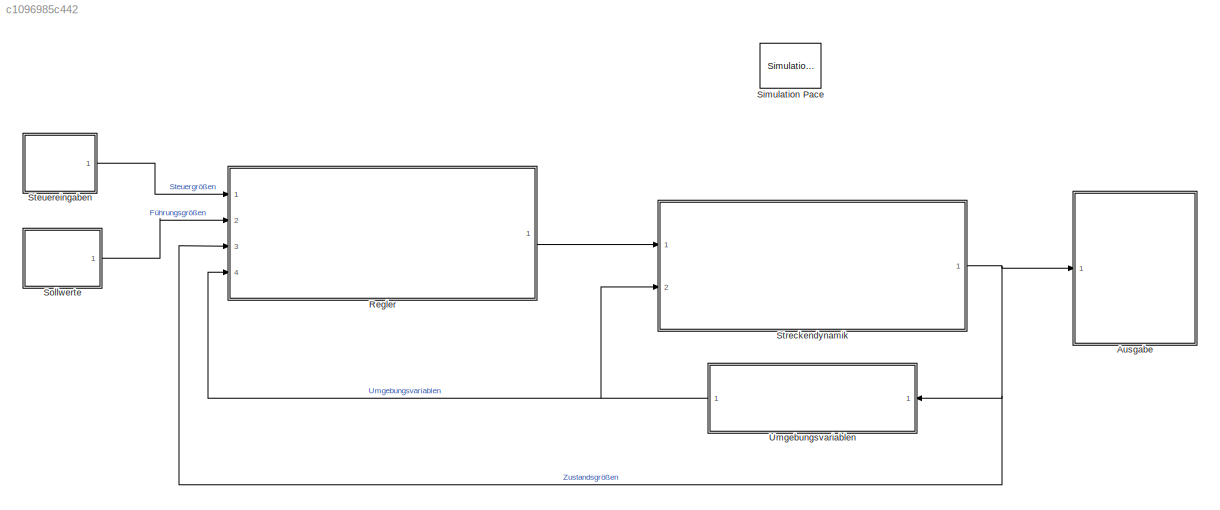
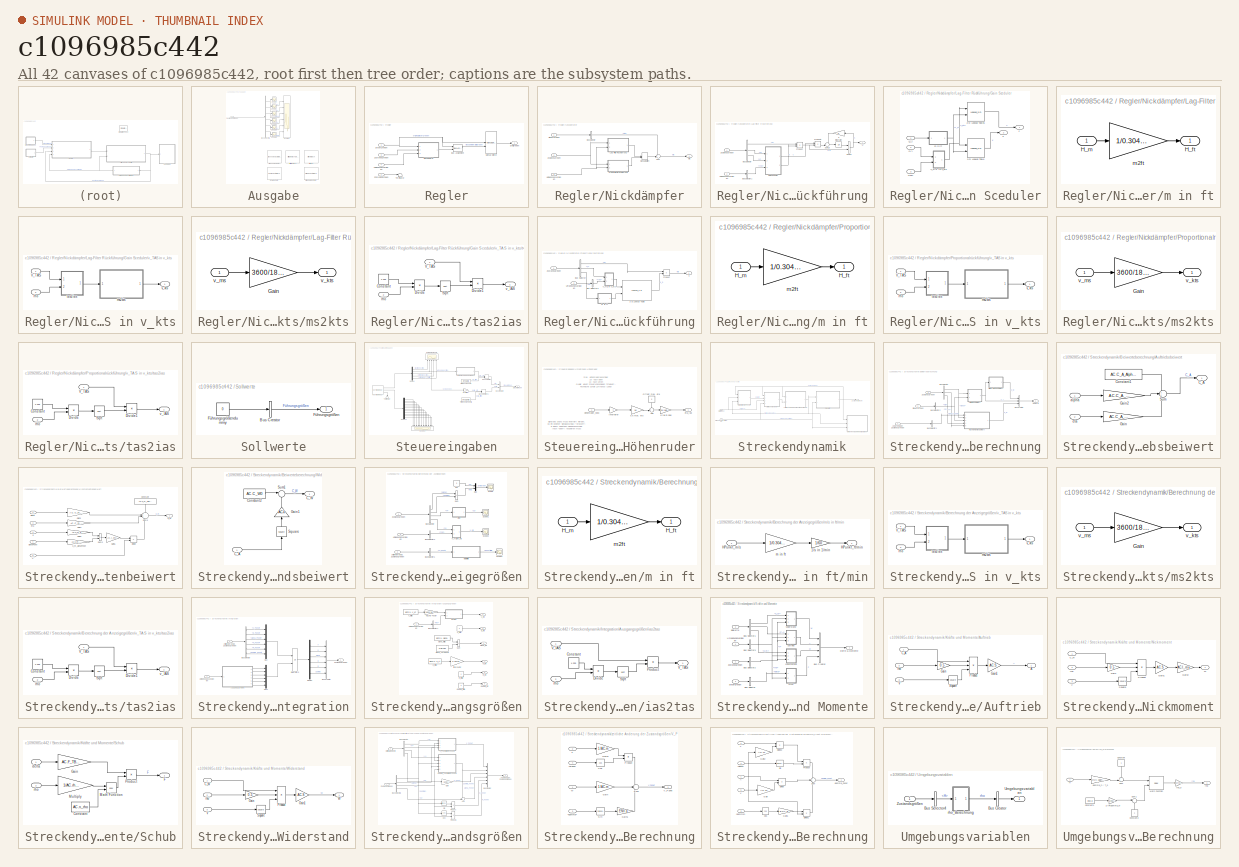
[diagram: thumbnail index - all 42 canvases of the model, root first then tree order]
MODEL slx_c1096985c442
KIND model
CONFIG AbsTol = auto
CONFIG EnableMultiTasking = off
CONFIG FixedStep = 0.02
CONFIG MaxStep = auto
CONFIG MinStep = auto
CONFIG RelTol = 1e-3
CONFIG SampleTimeConstraint = Unconstrained
CONFIG SolverName = ode4
CONFIG StartTime = 0.0
CONFIG StopTime = 120
BLOCK [SubSystem] Ausgabe
  Ports = [1]
  RequestExecContextInheritance = off
BLOCK [AirspeedIndicatorBlock] Ausgabe/Airspeed Indicator
BLOCK [AltimeterBlock] Ausgabe/Altimeter
BLOCK [ArtificialHorizonBlock] Ausgabe/Artificial Horizon
BLOCK [BusSelector] Ausgabe/Bus Selector5
  OutputSignals = V,q,alpha,H,R,gamma
  Ports = [1, 6]
BLOCK [ClimbIndicatorBlock] Ausgabe/Climb Rate Indicator
BLOCK [RPMIndicatorBlock] Ausgabe/RPM Indicator
BLOCK [Scope] Ausgabe/Scope
  Floating = off
  NumInputPorts = 1
  Ports = [1]
  ScopeSpecificationString = Simulink.scopes.TimeScopeBlockCfg('CurrentConfiguration', extmgr.ConfigurationSet(extmgr.Configuration('Core','General UI',true),extmgr.Configuration('Core','Source UI',true),extmgr.Configuration('Sources','WiredSimulink',true),extmgr.Configuration('Visuals','Time Domain',true),extmgr.Configuration('Tools','Plot Navigation',true),extmgr.Configuration('Tools','Measurements',true)),'Version','2021b'...<+1ch>
BLOCK [Scope] Ausgabe/Scope1
  Floating = off
  NumInputPorts = 1
  Ports = [1]
  ScopeSpecificationString = Simulink.scopes.TimeScopeBlockCfg('CurrentConfiguration', extmgr.ConfigurationSet(extmgr.Configuration('Core','General UI',true),extmgr.Configuration('Core','Source UI',true),extmgr.Configuration('Sources','WiredSimulink',true,'DataLoggingVariableName','ScopeData1'),extmgr.Configuration('Visuals','Time Domain',true,'SerializedDisplays',{struct('MinYLimReal','-0.08531','MaxYLimReal','0.13173','YLab...<+1387ch>
BLOCK [Scope] Ausgabe/Scope2
  Floating = off
  NumInputPorts = 1
  Ports = [1]
  ScopeSpecificationString = Simulink.scopes.TimeScopeBlockCfg('CurrentConfiguration', extmgr.ConfigurationSet(extmgr.Configuration('Core','General UI',true),extmgr.Configuration('Core','Source UI',true),extmgr.Configuration('Sources','WiredSimulink',true,'DataLoggingVariableName','ScopeData2'),extmgr.Configuration('Visuals','Time Domain',true,'SerializedDisplays',{struct('MinYLimReal','0.00788','MaxYLimReal','0.00988','YLabe...<+1364ch>
BLOCK [Scope] Ausgabe/Scope3
  Floating = off
  NumInputPorts = 1
  Ports = [1]
  ScopeSpecificationString = Simulink.scopes.TimeScopeBlockCfg('CurrentConfiguration', extmgr.ConfigurationSet(extmgr.Configuration('Core','General UI',true),extmgr.Configuration('Core','Source UI',true),extmgr.Configuration('Sources','WiredSimulink',true,'DataLoggingVariableName','ScopeData3'),extmgr.Configuration('Visuals','Time Domain',true,'SerializedDisplays',{struct('MinYLimReal','6115.75388','MaxYLimReal','11525.68053'...<+1388ch>
BLOCK [Scope] Ausgabe/Scope4
  Floating = off
  NumInputPorts = 1
  Ports = [1]
  ScopeSpecificationString = Simulink.scopes.TimeScopeBlockCfg('CurrentConfiguration', extmgr.ConfigurationSet(extmgr.Configuration('Core','General UI',true),extmgr.Configuration('Core','Source UI',true),extmgr.Configuration('Sources','WiredSimulink',true,'DataLoggingVariableName','ScopeData4'),extmgr.Configuration('Visuals','Time Domain',true,'SerializedDisplays',{struct('MinYLimReal','-9176.70041','MaxYLimReal','82590.30372...<+1388ch>
BLOCK [Scope] Ausgabe/Scope5
  Floating = off
  NumInputPorts = 1
  Ports = [1]
  ScopeSpecificationString = Simulink.scopes.TimeScopeBlockCfg('CurrentConfiguration', extmgr.ConfigurationSet(extmgr.Configuration('Core','General UI',true),extmgr.Configuration('Core','Source UI',true),extmgr.Configuration('Sources','WiredSimulink',true,'DataLoggingVariableName','ScopeData5'),extmgr.Configuration('Visuals','Time Domain',true,'SerializedDisplays',{struct('MinYLimReal','-0.7187','MaxYLimReal','0.65371','YLabe...<+1362ch>
BLOCK [Scope] Ausgabe/Scope6
  Floating = off
  NumInputPorts = 6
  Ports = [6]
  ScopeSpecificationString = Simulink.scopes.TimeScopeBlockCfg('CurrentConfiguration', extmgr.ConfigurationSet(extmgr.Configuration('Core','General UI',true),extmgr.Configuration('Core','Source UI',true),extmgr.Configuration('Sources','WiredSimulink',true,'DataLoggingVariableName','ScopeData1'),extmgr.Configuration('Visuals','Time Domain',true,'SerializedDisplays',{struct('MinYLimReal','184.74305','MaxYLimReal','193.39821','Y...<+4920ch>
BLOCK [Inport] Ausgabe/Zustandsgrößen
BLOCK [SubSystem] Regler
  Ports = [4, 1]
  RequestExecContextInheritance = off
BLOCK [BusAssignment] Regler/Bus Assignment
  AssignedSignals = eta
  Ports = [2, 1]
BLOCK [Inport] Regler/Führungsgrößen
  Port = 2
BLOCK [ManualSwitch] Regler/Manual Switch
  CurrentSetting = 0
BLOCK [SubSystem] Regler/Nickdämpfer
  Ports = [3, 1]
  RequestExecContextInheritance = off
BLOCK [BusSelector] Regler/Nickdämpfer/Bus Selector
  OutputSignals = eta
  Ports = [1, 1]
BLOCK [SubSystem] Regler/Nickdämpfer/Lag-Filter Rückführung
  Ports = [2, 1]
  RequestExecContextInheritance = off
BLOCK [BusSelector] Regler/Nickdämpfer/Lag-Filter Rückführung/Bus Selector
  OutputSignals = q,H,V
  Ports = [1, 3]
BLOCK [BusSelector] Regler/Nickdämpfer/Lag-Filter Rückführung/Bus Selector1
  OutputSignals = rho
  Ports = [1, 1]
BLOCK [SubSystem] Regler/Nickdämpfer/Lag-Filter Rückführung/Gain Sceduler
  Ports = [3, 2]
  RequestExecContextInheritance = off
BLOCK [Lookup_n-D] Regler/Nickdämpfer/Lag-Filter Rückführung/Gain Sceduler/2-D Lookup Table
  BreakpointsForDimension1 = input_speed
  BreakpointsForDimension2 = input_height
  InputPortMap = u0,u1
  InternalRulePriority = Speed
  Ports = [2, 1]
  RndMeth = Simplest
  Table = reshape(k_lag,[length(input_speed),length(input_height)])
BLOCK [Lookup_n-D] Regler/Nickdämpfer/Lag-Filter Rückführung/Gain Sceduler/2-D Lookup Table1
  BreakpointsForDimension1 = input_speed
  BreakpointsForDimension2 = input_height
  InputPortMap = u0,u1
  InternalRulePriority = Speed
  Ports = [2, 1]
  RndMeth = Simplest
  Table = reshape(c,[length(input_speed),length(input_height)])
BLOCK [Inport] Regler/Nickdämpfer/Lag-Filter Rückführung/Gain Sceduler/<H>
BLOCK [Inport] Regler/Nickdämpfer/Lag-Filter Rückführung/Gain Sceduler/<V>
  Port = 2
BLOCK [Inport] Regler/Nickdämpfer/Lag-Filter Rückführung/Gain Sceduler/<rho>
  Port = 3
BLOCK [Outport] Regler/Nickdämpfer/Lag-Filter Rückführung/Gain Sceduler/c
BLOCK [Outport] Regler/Nickdämpfer/Lag-Filter Rückführung/Gain Sceduler/k
  Port = 2
BLOCK [SubSystem] Regler/Nickdämpfer/Lag-Filter Rückführung/Gain Sceduler/m in ft
  Ports = [1, 1]
  RequestExecContextInheritance = off
BLOCK [Outport] Regler/Nickdämpfer/Lag-Filter Rückführung/Gain Sceduler/m in ft/H_ft
BLOCK [Inport] Regler/Nickdämpfer/Lag-Filter Rückführung/Gain Sceduler/m in ft/H_m
BLOCK [Gain] Regler/Nickdämpfer/Lag-Filter Rückführung/Gain Sceduler/m in ft/m2ft
  Gain = 1/0.30479
BLOCK [SubSystem] Regler/Nickdämpfer/Lag-Filter Rückführung/Gain Sceduler/v_TAS in v_kts
  Ports = [2, 1]
  RequestExecContextInheritance = off
BLOCK [Inport] Regler/Nickdämpfer/Lag-Filter Rückführung/Gain Sceduler/v_TAS in v_kts/V_TAS
BLOCK [SubSystem] Regler/Nickdämpfer/Lag-Filter Rückführung/Gain Sceduler/v_TAS in v_kts/ms2kts
  Ports = [1, 1]
  RequestExecContextInheritance = off
BLOCK [Gain] Regler/Nickdämpfer/Lag-Filter Rückführung/Gain Sceduler/v_TAS in v_kts/ms2kts/Gain
  Gain = 3600/1852
BLOCK [Outport] Regler/Nickdämpfer/Lag-Filter Rückführung/Gain Sceduler/v_TAS in v_kts/ms2kts/v_kts
BLOCK [Inport] Regler/Nickdämpfer/Lag-Filter Rückführung/Gain Sceduler/v_TAS in v_kts/ms2kts/v_ms
BLOCK [Inport] Regler/Nickdämpfer/Lag-Filter Rückführung/Gain Sceduler/v_TAS in v_kts/rho
  Port = 2
BLOCK [SubSystem] Regler/Nickdämpfer/Lag-Filter Rückführung/Gain Sceduler/v_TAS in v_kts/tas2ias
  Ports = [2, 1]
  RequestExecContextInheritance = off
BLOCK [Constant] Regler/Nickdämpfer/Lag-Filter Rückführung/Gain Sceduler/v_TAS in v_kts/tas2ias/Constant
  Value = 1.225
BLOCK [Product] Regler/Nickdämpfer/Lag-Filter Rückführung/Gain Sceduler/v_TAS in v_kts/tas2ias/Divide
  Inputs = */
  Ports = [2, 1]
BLOCK [Product] Regler/Nickdämpfer/Lag-Filter Rückführung/Gain Sceduler/v_TAS in v_kts/tas2ias/Divide1
  Inputs = */
  Ports = [2, 1]
BLOCK [Sqrt] Regler/Nickdämpfer/Lag-Filter Rückführung/Gain Sceduler/v_TAS in v_kts/tas2ias/Sqrt
BLOCK [Inport] Regler/Nickdämpfer/Lag-Filter Rückführung/Gain Sceduler/v_TAS in v_kts/tas2ias/V_TAS
BLOCK [Inport] Regler/Nickdämpfer/Lag-Filter Rückführung/Gain Sceduler/v_TAS in v_kts/tas2ias/rho
  Port = 2
BLOCK [Outport] Regler/Nickdämpfer/Lag-Filter Rückführung/Gain Sceduler/v_TAS in v_kts/tas2ias/v_IAS
BLOCK [Outport] Regler/Nickdämpfer/Lag-Filter Rückführung/Gain Sceduler/v_TAS in v_kts/v_kts
BLOCK [Integrator] Regler/Nickdämpfer/Lag-Filter Rückführung/Integrator
  NameLocation = top
  Ports = [1, 1]
BLOCK [Product] Regler/Nickdämpfer/Lag-Filter Rückführung/Product
  Ports = [2, 1]
BLOCK [Product] Regler/Nickdämpfer/Lag-Filter Rückführung/Product1
  Ports = [2, 1]
BLOCK [Sum] Regler/Nickdämpfer/Lag-Filter Rückführung/Sum12
  IconShape = rectangular
  NameLocation = top
  Ports = [2, 1]
BLOCK [Sum] Regler/Nickdämpfer/Lag-Filter Rückführung/Sum13
  Inputs = --|
  NameLocation = top
  Ports = [2, 1]
BLOCK [Inport] Regler/Nickdämpfer/Lag-Filter Rückführung/Umgebungsvariablen
  Port = 2
BLOCK [Inport] Regler/Nickdämpfer/Lag-Filter Rückführung/Zustandsgrößen
  NameLocation = top
BLOCK [Gain] Regler/Nickdämpfer/Lag-Filter Rückführung/d
  NameLocation = top
BLOCK [Outport] Regler/Nickdämpfer/Lag-Filter Rückführung/η
  NameLocation = top
BLOCK [ManualSwitch] Regler/Nickdämpfer/Manual Switch
BLOCK [SubSystem] Regler/Nickdämpfer/Proportionalrückführung
  Ports = [2, 1]
  RequestExecContextInheritance = off
BLOCK [Lookup_n-D] Regler/Nickdämpfer/Proportionalrückführung/2-D Lookup Table
  BreakpointsForDimension1 = input_speed
  BreakpointsForDimension2 = input_height
  InputPortMap = u0,u1
  InternalRulePriority = Speed
  Ports = [2, 1]
  RndMeth = Simplest
  Table = reshape(k_p,[length(input_speed),length(input_height)])
BLOCK [BusSelector] Regler/Nickdämpfer/Proportionalrückführung/Bus Selector
  OutputSignals = q,V,H
  Ports = [1, 3]
BLOCK [BusSelector] Regler/Nickdämpfer/Proportionalrückführung/Bus Selector2
  OutputSignals = rho
  Ports = [1, 1]
BLOCK [Product] Regler/Nickdämpfer/Proportionalrückführung/Product
  Ports = [2, 1]
BLOCK [Inport] Regler/Nickdämpfer/Proportionalrückführung/Umgebungsvariablen
  Port = 2
BLOCK [Inport] Regler/Nickdämpfer/Proportionalrückführung/Zustandsgrößen
BLOCK [SubSystem] Regler/Nickdämpfer/Proportionalrückführung/m in ft
  Ports = [1, 1]
  RequestExecContextInheritance = off
BLOCK [Outport] Regler/Nickdämpfer/Proportionalrückführung/m in ft/H_ft
BLOCK [Inport] Regler/Nickdämpfer/Proportionalrückführung/m in ft/H_m
BLOCK [Gain] Regler/Nickdämpfer/Proportionalrückführung/m in ft/m2ft
  Gain = 1/0.30479
BLOCK [SubSystem] Regler/Nickdämpfer/Proportionalrückführung/v_TAS in v_kts
  Ports = [2, 1]
  RequestExecContextInheritance = off
BLOCK [Inport] Regler/Nickdämpfer/Proportionalrückführung/v_TAS in v_kts/V_TAS
BLOCK [SubSystem] Regler/Nickdämpfer/Proportionalrückführung/v_TAS in v_kts/ms2kts
  Ports = [1, 1]
  RequestExecContextInheritance = off
BLOCK [Gain] Regler/Nickdämpfer/Proportionalrückführung/v_TAS in v_kts/ms2kts/Gain
  Gain = 3600/1852
BLOCK [Outport] Regler/Nickdämpfer/Proportionalrückführung/v_TAS in v_kts/ms2kts/v_kts
BLOCK [Inport] Regler/Nickdämpfer/Proportionalrückführung/v_TAS in v_kts/ms2kts/v_ms
BLOCK [Inport] Regler/Nickdämpfer/Proportionalrückführung/v_TAS in v_kts/rho
  Port = 2
BLOCK [SubSystem] Regler/Nickdämpfer/Proportionalrückführung/v_TAS in v_kts/tas2ias
  Ports = [2, 1]
  RequestExecContextInheritance = off
BLOCK [Constant] Regler/Nickdämpfer/Proportionalrückführung/v_TAS in v_kts/tas2ias/Constant
  Value = 1.225
BLOCK [Product] Regler/Nickdämpfer/Proportionalrückführung/v_TAS in v_kts/tas2ias/Divide
  Inputs = */
  Ports = [2, 1]
BLOCK [Product] Regler/Nickdämpfer/Proportionalrückführung/v_TAS in v_kts/tas2ias/Divide1
  Inputs = */
  Ports = [2, 1]
BLOCK [Sqrt] Regler/Nickdämpfer/Proportionalrückführung/v_TAS in v_kts/tas2ias/Sqrt
BLOCK [Inport] Regler/Nickdämpfer/Proportionalrückführung/v_TAS in v_kts/tas2ias/V_TAS
BLOCK [Inport] Regler/Nickdämpfer/Proportionalrückführung/v_TAS in v_kts/tas2ias/rho
  Port = 2
BLOCK [Outport] Regler/Nickdämpfer/Proportionalrückführung/v_TAS in v_kts/tas2ias/v_IAS
BLOCK [Outport] Regler/Nickdämpfer/Proportionalrückführung/v_TAS in v_kts/v_kts
BLOCK [Outport] Regler/Nickdämpfer/Proportionalrückführung/η
BLOCK [Inport] Regler/Nickdämpfer/Steuergrößen
BLOCK [Sum] Regler/Nickdämpfer/Sum
  Inputs = +-|
  Ports = [2, 1]
BLOCK [Inport] Regler/Nickdämpfer/Umgebungsvariablen
  Port = 3
BLOCK [Inport] Regler/Nickdämpfer/Zustandsgrößen
  Port = 2
BLOCK [Outport] Regler/Nickdämpfer/eta
BLOCK [Outport] Regler/Stellgrößen
BLOCK [Inport] Regler/Steuergrößen
BLOCK [Terminator] Regler/Terminator
BLOCK [Inport] Regler/Umgebungsvariablen
  Port = 4
BLOCK [Inport] Regler/Zustandsgrößen
  Port = 3
BLOCK [Reference] Simulation Pace  REF=aerolibanimutils/Simulation Pace
  AttributesFormatString = %<SleepMode>\n%<SimulationPace> sec/sec
  Ports = []
  SourceBlock = aerolibanimutils/Simulation Pace
  SourceProductBaseCode = AE
  SourceType = Simulation Pace
BLOCK [SubSystem] Sollwerte
  Ports = [0, 1]
  RequestExecContextInheritance = off
BLOCK [BusCreator] Sollwerte/Bus Creator
  DisplayOption = bar
  InheritFromInputs = on
  Inputs = 1
  Ports = [1, 1]
BLOCK [Outport] Sollwerte/Führungsgrößen
BLOCK [Constant] Sollwerte/Führungsgrößendummy
  Value = 0
BLOCK [SubSystem] Steuereingaben
  Ports = [0, 1]
  RequestExecContextInheritance = off
BLOCK [BusCreator] Steuereingaben/Bus Creator2
  DisplayOption = bar
  InheritFromInputs = on
  Inputs = 2
  Ports = [2, 1]
BLOCK [Demux] Steuereingaben/Demux
  Outputs = 5
  Ports = [1, 5]
BLOCK [Demux] Steuereingaben/Demux1
  Outputs = 12
  Ports = [1, 12]
BLOCK [Scope] Steuereingaben/Hardware Signale
  Floating = off
  NameLocation = top
  NumInputPorts = 5
  Ports = [5]
  ScopeSpecificationString = Simulink.scopes.TimeScopeBlockCfg('CurrentConfiguration', extmgr.ConfigurationSet(extmgr.Configuration('Core','General UI',true),extmgr.Configuration('Core','Source UI',true),extmgr.Configuration('Sources','WiredSimulink',true,'DataLoggingVariableName','ScopeData4'),extmgr.Configuration('Visuals','Time Domain',true,'SerializedDisplays',{struct('MinYLimReal','-1.00000','MaxYLimReal','1.00000','YLab...<+4803ch>
BLOCK [Gain] Steuereingaben/Invertierer
  Gain = -1
BLOCK [Reference] Steuereingaben/Joystick Input  REF=vrlib/Joystick Input
  Ports = [0, 3]
  SourceBlock = vrlib/Joystick Input
  SourceProductBaseCode = SL
  SourceType = Joystick Input
BLOCK [ManualSwitch] Steuereingaben/Manual Switch
BLOCK [ManualSwitch] Steuereingaben/Manual Switch1
BLOCK [Scope] Steuereingaben/Scope1
  Floating = off
  NameLocation = left
  NumInputPorts = 12
  Ports = [12]
  ScopeSpecificationString = Simulink.scopes.TimeScopeBlockCfg('CurrentConfiguration', extmgr.ConfigurationSet(extmgr.Configuration('Core','General UI',true),extmgr.Configuration('Core','Source UI',true),extmgr.Configuration('Sources','WiredSimulink',true,'DataLoggingVariableName','ScopeData5'),extmgr.Configuration('Visuals','Time Domain',true,'SerializedDisplays',{struct('MinYLimReal','-1.00000','MaxYLimReal','1.00000','YLab...<+8959ch>
BLOCK [Outport] Steuereingaben/Steuergrößen
BLOCK [Terminator] Steuereingaben/Terminator
  NameLocation = left
BLOCK [Constant] Steuereingaben/Trimmzustand delta
  Value = BFZ(1).delta
BLOCK [Constant] Steuereingaben/Trimmzustand eta
  Value = BFZ(1).eta
BLOCK [SubSystem] Steuereingaben/Umsetzung Höhenruder
  Ports = [1, 1]
  RequestExecContextInheritance = off
BLOCK [Gain] Steuereingaben/Umsetzung Höhenruder/0.5 max. eta
  Gain = 18
BLOCK [Sum] Steuereingaben/Umsetzung Höhenruder/Add
  Inputs = ++|
  Ports = [2, 1]
BLOCK [Gain] Steuereingaben/Umsetzung Höhenruder/Grad in Rad
  Gain = pi/180
BLOCK [Inport] Steuereingaben/Umsetzung Höhenruder/Höhenruder_Stick
BLOCK [Gain] Steuereingaben/Umsetzung Höhenruder/Invertierer
  Gain = -1
BLOCK [Constant] Steuereingaben/Umsetzung Höhenruder/Offset max. eta
  NameLocation = top
  Value = 5
BLOCK [Outport] Steuereingaben/Umsetzung Höhenruder/eta_rad
BLOCK [SubSystem] Streckendynamik
  Ports = [2, 1]
  RequestExecContextInheritance = off
BLOCK [SubSystem] Streckendynamik/Beiwerteberechnung
  Ports = [3, 1]
  RequestExecContextInheritance = off
BLOCK [SubSystem] Streckendynamik/Beiwerteberechnung/Auftriebsbeiwert
  Ports = [2, 1]
  RequestExecContextInheritance = off
BLOCK [Outport] Streckendynamik/Beiwerteberechnung/Auftriebsbeiwert/C_A
BLOCK [Constant] Streckendynamik/Beiwerteberechnung/Auftriebsbeiwert/Constant1
  Value = AC.C_A_Alpha0Eta0
BLOCK [Gain] Streckendynamik/Beiwerteberechnung/Auftriebsbeiwert/Gain
  Gain = AC.C_A_Eta
BLOCK [Gain] Streckendynamik/Beiwerteberechnung/Auftriebsbeiwert/Gain2
  Gain = AC.C_A_Alpha
BLOCK [Sum] Streckendynamik/Beiwerteberechnung/Auftriebsbeiwert/Sum
  Inputs = +++
  Ports = [3, 1]
BLOCK [Inport] Streckendynamik/Beiwerteberechnung/Auftriebsbeiwert/alpha
BLOCK [Inport] Streckendynamik/Beiwerteberechnung/Auftriebsbeiwert/eta
  Port = 2
BLOCK [Outport] Streckendynamik/Beiwerteberechnung/Beiwerte
BLOCK [BusCreator] Streckendynamik/Beiwerteberechnung/Bus Creator
  DisplayOption = bar
  InheritFromInputs = on
  Inputs = 3
  Ports = [3, 1]
BLOCK [BusSelector] Streckendynamik/Beiwerteberechnung/Bus Selector
  OutputSignals = alpha,V,q
  Ports = [1, 3]
BLOCK [BusSelector] Streckendynamik/Beiwerteberechnung/Bus Selector1
  OutputSignals = alpha_Punkt
  Ports = [1, 1]
BLOCK [BusSelector] Streckendynamik/Beiwerteberechnung/Bus Selector2
  OutputSignals = eta
  Ports = [1, 1]
BLOCK [SubSystem] Streckendynamik/Beiwerteberechnung/Nickmomentenbeiwert
  Ports = [5, 1]
  RequestExecContextInheritance = off
BLOCK [Outport] Streckendynamik/Beiwerteberechnung/Nickmomentenbeiwert/C_m
BLOCK [Gain] Streckendynamik/Beiwerteberechnung/Nickmomentenbeiwert/C_m_alphaPunkt
  Gain = AC.C_m_alphaPunkt
BLOCK [Constant] Streckendynamik/Beiwerteberechnung/Nickmomentenbeiwert/Constant
  NameLocation = left
  Value = AC.C_m_Alpha0Eta0
BLOCK [Product] Streckendynamik/Beiwerteberechnung/Nickmomentenbeiwert/Divide
  Inputs = */
  Ports = [2, 1]
BLOCK [Gain] Streckendynamik/Beiwerteberechnung/Nickmomentenbeiwert/Gain3
  Gain = AC.C_m_Alpha
BLOCK [Gain] Streckendynamik/Beiwerteberechnung/Nickmomentenbeiwert/Gain4
  Gain = AC.C_m_Eta
BLOCK [Gain] Streckendynamik/Beiwerteberechnung/Nickmomentenbeiwert/Gain5
  Gain = AC.C_m_q
BLOCK [Gain] Streckendynamik/Beiwerteberechnung/Nickmomentenbeiwert/Gain6
  Gain = AC.l_my
BLOCK [Sum] Streckendynamik/Beiwerteberechnung/Nickmomentenbeiwert/Sum2
  IconShape = rectangular
  Ports = [2, 1]
BLOCK [Sum] Streckendynamik/Beiwerteberechnung/Nickmomentenbeiwert/Sum3
  Inputs = ++++
  Ports = [4, 1]
BLOCK [Inport] Streckendynamik/Beiwerteberechnung/Nickmomentenbeiwert/V
  Port = 5
BLOCK [Inport] Streckendynamik/Beiwerteberechnung/Nickmomentenbeiwert/alpha
  Port = 2
BLOCK [Inport] Streckendynamik/Beiwerteberechnung/Nickmomentenbeiwert/alphaPunkt
BLOCK [Inport] Streckendynamik/Beiwerteberechnung/Nickmomentenbeiwert/eta
  Port = 3
BLOCK [Inport] Streckendynamik/Beiwerteberechnung/Nickmomentenbeiwert/q
  Port = 4
BLOCK [Inport] Streckendynamik/Beiwerteberechnung/Steuergrößen
  Port = 2
BLOCK [SubSystem] Streckendynamik/Beiwerteberechnung/Widerstandsbeiwert
  Ports = [1, 1]
  RequestExecContextInheritance = off
BLOCK [Inport] Streckendynamik/Beiwerteberechnung/Widerstandsbeiwert/C_A
BLOCK [Outport] Streckendynamik/Beiwerteberechnung/Widerstandsbeiwert/C_W
BLOCK [Constant] Streckendynamik/Beiwerteberechnung/Widerstandsbeiwert/Constant2
  Value = AC.C_W0
BLOCK [Gain] Streckendynamik/Beiwerteberechnung/Widerstandsbeiwert/Gain1
  Gain = AC.k
  NameLocation = right
BLOCK [Math] Streckendynamik/Beiwerteberechnung/Widerstandsbeiwert/Square
  NameLocation = right
  Operator = square
  Ports = [1, 1]
BLOCK [Sum] Streckendynamik/Beiwerteberechnung/Widerstandsbeiwert/Sum1
  Inputs = |++
  Ports = [2, 1]
BLOCK [Inport] Streckendynamik/Beiwerteberechnung/Zustandsgrößen
BLOCK [Inport] Streckendynamik/Beiwerteberechnung/Änderung der Zustandsgrößen
  Port = 3
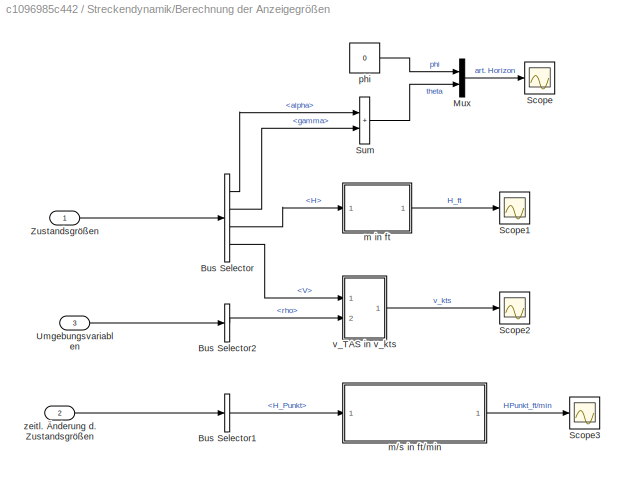
BLOCK [SubSystem] Streckendynamik/Berechnung der Anzeigegrößen
  Ports = [3]
  RequestExecContextInheritance = off
BLOCK [BusSelector] Streckendynamik/Berechnung der Anzeigegrößen/Bus Selector
  OutputSignals = alpha,gamma,H,V
  Ports = [1, 4]
BLOCK [BusSelector] Streckendynamik/Berechnung der Anzeigegrößen/Bus Selector1
  OutputSignals = H_Punkt
  Ports = [1, 1]
BLOCK [BusSelector] Streckendynamik/Berechnung der Anzeigegrößen/Bus Selector2
  OutputSignals = rho
  Ports = [1, 1]
BLOCK [Mux] Streckendynamik/Berechnung der Anzeigegrößen/Mux
  DisplayOption = bar
  Inputs = 2
  Ports = [2, 1]
BLOCK [Scope] Streckendynamik/Berechnung der Anzeigegrößen/Scope
  Floating = off
  NumInputPorts = 1
  Ports = [1]
  ScopeSpecificationString = Simulink.scopes.TimeScopeBlockCfg('CurrentConfiguration', extmgr.ConfigurationSet(extmgr.Configuration('Core','General UI',true),extmgr.Configuration('Core','Source UI',true),extmgr.Configuration('Sources','WiredSimulink',true,'DataLoggingVariableName','ScopeData1'),extmgr.Configuration('Visuals','Time Domain',true),extmgr.Configuration('Tools','Plot Navigation',true),extmgr.Configuration('Tools',...<+40ch>
BLOCK [Scope] Streckendynamik/Berechnung der Anzeigegrößen/Scope1
  Floating = off
  NumInputPorts = 1
  Ports = [1]
  ScopeSpecificationString = Simulink.scopes.TimeScopeBlockCfg('CurrentConfiguration', extmgr.ConfigurationSet(extmgr.Configuration('Core','General UI',true),extmgr.Configuration('Core','Source UI',true),extmgr.Configuration('Sources','WiredSimulink',true,'DataLoggingVariableName','ScopeData2'),extmgr.Configuration('Visuals','Time Domain',true),extmgr.Configuration('Tools','Plot Navigation',true),extmgr.Configuration('Tools',...<+40ch>
BLOCK [Scope] Streckendynamik/Berechnung der Anzeigegrößen/Scope2
  Floating = off
  NumInputPorts = 1
  Ports = [1]
  ScopeSpecificationString = Simulink.scopes.TimeScopeBlockCfg('CurrentConfiguration', extmgr.ConfigurationSet(extmgr.Configuration('Core','General UI',true),extmgr.Configuration('Core','Source UI',true),extmgr.Configuration('Sources','WiredSimulink',true,'DataLoggingVariableName','ScopeData3'),extmgr.Configuration('Visuals','Time Domain',true),extmgr.Configuration('Tools','Plot Navigation',true),extmgr.Configuration('Tools',...<+40ch>
BLOCK [Scope] Streckendynamik/Berechnung der Anzeigegrößen/Scope3
  Floating = off
  NumInputPorts = 1
  Ports = [1]
  ScopeSpecificationString = Simulink.scopes.TimeScopeBlockCfg('CurrentConfiguration', extmgr.ConfigurationSet(extmgr.Configuration('Core','General UI',true),extmgr.Configuration('Core','Source UI',true),extmgr.Configuration('Sources','WiredSimulink',true,'DataLoggingVariableName','ScopeData6'),extmgr.Configuration('Visuals','Time Domain',true),extmgr.Configuration('Tools','Plot Navigation',true),extmgr.Configuration('Tools',...<+40ch>
BLOCK [Sum] Streckendynamik/Berechnung der Anzeigegrößen/Sum
  IconShape = rectangular
  Ports = [2, 1]
BLOCK [Inport] Streckendynamik/Berechnung der Anzeigegrößen/Umgebungsvariablen
  Port = 3
BLOCK [Inport] Streckendynamik/Berechnung der Anzeigegrößen/Zustandsgrößen
BLOCK [SubSystem] Streckendynamik/Berechnung der Anzeigegrößen/m in ft
  Ports = [1, 1]
  RequestExecContextInheritance = off
BLOCK [Outport] Streckendynamik/Berechnung der Anzeigegrößen/m in ft/H_ft
BLOCK [Inport] Streckendynamik/Berechnung der Anzeigegrößen/m in ft/H_m
BLOCK [Gain] Streckendynamik/Berechnung der Anzeigegrößen/m in ft/m2ft
  Gain = 1/0.30479
BLOCK [SubSystem] Streckendynamik/Berechnung der Anzeigegrößen/m//s in ft//min
  Ports = [1, 1]
  RequestExecContextInheritance = off
BLOCK [Gain] Streckendynamik/Berechnung der Anzeigegrößen/m//s in ft//min/1//s in 1//min
  Gain = 1/60
BLOCK [Outport] Streckendynamik/Berechnung der Anzeigegrößen/m//s in ft//min/HPunkt_ft//min
BLOCK [Inport] Streckendynamik/Berechnung der Anzeigegrößen/m//s in ft//min/HPunkt_m//s
BLOCK [Gain] Streckendynamik/Berechnung der Anzeigegrößen/m//s in ft//min/m in ft
  Gain = 1/0.30479
BLOCK [Constant] Streckendynamik/Berechnung der Anzeigegrößen/phi
  Value = 0
BLOCK [SubSystem] Streckendynamik/Berechnung der Anzeigegrößen/v_TAS in v_kts
  Ports = [2, 1]
  RequestExecContextInheritance = off
BLOCK [Inport] Streckendynamik/Berechnung der Anzeigegrößen/v_TAS in v_kts/V_TAS
BLOCK [SubSystem] Streckendynamik/Berechnung der Anzeigegrößen/v_TAS in v_kts/ms2kts
  Ports = [1, 1]
  RequestExecContextInheritance = off
BLOCK [Gain] Streckendynamik/Berechnung der Anzeigegrößen/v_TAS in v_kts/ms2kts/Gain
  Gain = 3600/1852
BLOCK [Outport] Streckendynamik/Berechnung der Anzeigegrößen/v_TAS in v_kts/ms2kts/v_kts
BLOCK [Inport] Streckendynamik/Berechnung der Anzeigegrößen/v_TAS in v_kts/ms2kts/v_ms
BLOCK [Inport] Streckendynamik/Berechnung der Anzeigegrößen/v_TAS in v_kts/rho
  Port = 2
BLOCK [SubSystem] Streckendynamik/Berechnung der Anzeigegrößen/v_TAS in v_kts/tas2ias
  Ports = [2, 1]
  RequestExecContextInheritance = off
BLOCK [Constant] Streckendynamik/Berechnung der Anzeigegrößen/v_TAS in v_kts/tas2ias/Constant
  Value = 1.225
BLOCK [Product] Streckendynamik/Berechnung der Anzeigegrößen/v_TAS in v_kts/tas2ias/Divide
  Inputs = */
  Ports = [2, 1]
BLOCK [Product] Streckendynamik/Berechnung der Anzeigegrößen/v_TAS in v_kts/tas2ias/Divide1
  Inputs = */
  Ports = [2, 1]
BLOCK [Sqrt] Streckendynamik/Berechnung der Anzeigegrößen/v_TAS in v_kts/tas2ias/Sqrt
BLOCK [Inport] Streckendynamik/Berechnung der Anzeigegrößen/v_TAS in v_kts/tas2ias/V_TAS
BLOCK [Inport] Streckendynamik/Berechnung der Anzeigegrößen/v_TAS in v_kts/tas2ias/rho
  Port = 2
BLOCK [Outport] Streckendynamik/Berechnung der Anzeigegrößen/v_TAS in v_kts/tas2ias/v_IAS
BLOCK [Outport] Streckendynamik/Berechnung der Anzeigegrößen/v_TAS in v_kts/v_kts
BLOCK [Inport] Streckendynamik/Berechnung der Anzeigegrößen/zeitl. Änderung d. Zustandsgrößen
  Port = 2
BLOCK [SubSystem] Streckendynamik/Integration
  Ports = [2, 1]
  RequestExecContextInheritance = off
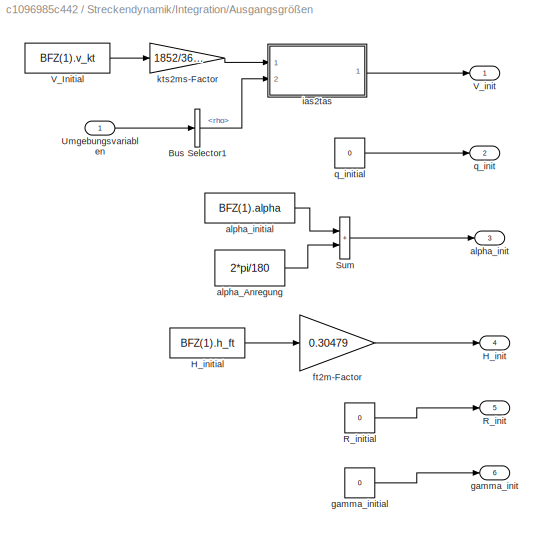
BLOCK [SubSystem] Streckendynamik/Integration/Ausgangsgrößen
  Ports = [1, 6]
  RequestExecContextInheritance = off
BLOCK [BusSelector] Streckendynamik/Integration/Ausgangsgrößen/Bus Selector1
  OutputSignals = rho
  Ports = [1, 1]
BLOCK [Outport] Streckendynamik/Integration/Ausgangsgrößen/H_init
  Port = 4
BLOCK [Constant] Streckendynamik/Integration/Ausgangsgrößen/H_initial
  Value = BFZ(1).h_ft
BLOCK [Outport] Streckendynamik/Integration/Ausgangsgrößen/R_init
  Port = 5
BLOCK [Constant] Streckendynamik/Integration/Ausgangsgrößen/R_initial
  Value = 0
BLOCK [Sum] Streckendynamik/Integration/Ausgangsgrößen/Sum
  IconShape = rectangular
  Ports = [2, 1]
BLOCK [Inport] Streckendynamik/Integration/Ausgangsgrößen/Umgebungsvariablen
BLOCK [Constant] Streckendynamik/Integration/Ausgangsgrößen/V_Initial
  Value = BFZ(1).v_kt
BLOCK [Outport] Streckendynamik/Integration/Ausgangsgrößen/V_init
BLOCK [Constant] Streckendynamik/Integration/Ausgangsgrößen/alpha_Anregung
  Value = 2*pi/180
BLOCK [Outport] Streckendynamik/Integration/Ausgangsgrößen/alpha_init
  Port = 3
BLOCK [Constant] Streckendynamik/Integration/Ausgangsgrößen/alpha_initial
  Value = BFZ(1).alpha
BLOCK [Gain] Streckendynamik/Integration/Ausgangsgrößen/ft2m-Factor
  Gain = 0.30479
BLOCK [Outport] Streckendynamik/Integration/Ausgangsgrößen/gamma_init
  Port = 6
BLOCK [Constant] Streckendynamik/Integration/Ausgangsgrößen/gamma_initial
  Value = 0
BLOCK [SubSystem] Streckendynamik/Integration/Ausgangsgrößen/ias2tas
  Ports = [2, 1]
  RequestExecContextInheritance = off
BLOCK [Constant] Streckendynamik/Integration/Ausgangsgrößen/ias2tas/Constant
  Value = 1.225
BLOCK [Product] Streckendynamik/Integration/Ausgangsgrößen/ias2tas/Divide
  Inputs = */
  Ports = [2, 1]
BLOCK [Product] Streckendynamik/Integration/Ausgangsgrößen/ias2tas/Product
  Ports = [2, 1]
BLOCK [Sqrt] Streckendynamik/Integration/Ausgangsgrößen/ias2tas/Sqrt
BLOCK [Inport] Streckendynamik/Integration/Ausgangsgrößen/ias2tas/V_IAS
BLOCK [Outport] Streckendynamik/Integration/Ausgangsgrößen/ias2tas/V_TAS
BLOCK [Inport] Streckendynamik/Integration/Ausgangsgrößen/ias2tas/rho
  Port = 2
BLOCK [Gain] Streckendynamik/Integration/Ausgangsgrößen/kts2ms-Factor
  Gain = 1852/3600
BLOCK [Outport] Streckendynamik/Integration/Ausgangsgrößen/q_init
  Port = 2
BLOCK [Constant] Streckendynamik/Integration/Ausgangsgrößen/q_initial
  Value = 0
BLOCK [BusCreator] Streckendynamik/Integration/Bus Creator
  DisplayOption = bar
  InheritFromInputs = on
  Inputs = 6
  Ports = [6, 1]
BLOCK [BusSelector] Streckendynamik/Integration/Bus Selector
  OutputSignals = V_Punkt,q_Punkt,alpha_Punkt,H_Punkt,R_Punkt,gamma_Punkt
  Ports = [1, 6]
BLOCK [Demux] Streckendynamik/Integration/Demux
  Outputs = 6
  Ports = [1, 6]
BLOCK [Integrator] Streckendynamik/Integration/Integrator3
  InitialConditionSource = external
  Ports = [2, 1]
BLOCK [Mux] Streckendynamik/Integration/Mux
  DisplayOption = bar
  Inputs = 6
  Ports = [6, 1]
BLOCK [Mux] Streckendynamik/Integration/Mux1
  DisplayOption = bar
  Inputs = 6
  Ports = [6, 1]
BLOCK [Inport] Streckendynamik/Integration/Umgebungsvariablen
  Port = 2
BLOCK [Outport] Streckendynamik/Integration/Zustandsgrößen
BLOCK [Inport] Streckendynamik/Integration/zeitl. Änderung d. Zustandsgrößen
BLOCK [SubSystem] Streckendynamik/Kräfte und Momente
  Ports = [4, 1]
  RequestExecContextInheritance = off
BLOCK [SubSystem] Streckendynamik/Kräfte und Momente/Auftrieb
  Ports = [3, 1]
  RequestExecContextInheritance = off
BLOCK [Outport] Streckendynamik/Kräfte und Momente/Auftrieb/A
BLOCK [Inport] Streckendynamik/Kräfte und Momente/Auftrieb/C_A
BLOCK [Gain] Streckendynamik/Kräfte und Momente/Auftrieb/Gain
  Gain = 0.5
BLOCK [Gain] Streckendynamik/Kräfte und Momente/Auftrieb/Gain1
  Gain = AC.S
BLOCK [Product] Streckendynamik/Kräfte und Momente/Auftrieb/Product
  Inputs = 3
  Ports = [3, 1]
BLOCK [Math] Streckendynamik/Kräfte und Momente/Auftrieb/Square
  Operator = square
  Ports = [1, 1]
BLOCK [Inport] Streckendynamik/Kräfte und Momente/Auftrieb/V
  Port = 3
BLOCK [Inport] Streckendynamik/Kräfte und Momente/Auftrieb/rho
  Port = 2
BLOCK [Inport] Streckendynamik/Kräfte und Momente/Beiwerte
  Port = 2
BLOCK [BusCreator] Streckendynamik/Kräfte und Momente/Bus Creator
  DisplayOption = bar
  InheritFromInputs = on
  Inputs = 4
  Ports = [4, 1]
BLOCK [BusSelector] Streckendynamik/Kräfte und Momente/Bus Selector
  OutputSignals = delta
  Ports = [1, 1]
BLOCK [BusSelector] Streckendynamik/Kräfte und Momente/Bus Selector1
  OutputSignals = C_W,C_A,C_m
  Ports = [1, 3]
BLOCK [BusSelector] Streckendynamik/Kräfte und Momente/Bus Selector2
  OutputSignals = V
  Ports = [1, 1]
BLOCK [BusSelector] Streckendynamik/Kräfte und Momente/Bus Selector3
  OutputSignals = rho
  Ports = [1, 1]
BLOCK [Outport] Streckendynamik/Kräfte und Momente/Kräfte & Momente
BLOCK [SubSystem] Streckendynamik/Kräfte und Momente/Nickmoment
  Ports = [3, 1]
  RequestExecContextInheritance = off
BLOCK [Inport] Streckendynamik/Kräfte und Momente/Nickmoment/C_m
BLOCK [Gain] Streckendynamik/Kräfte und Momente/Nickmoment/Gain
  Gain = 0.5
BLOCK [Gain] Streckendynamik/Kräfte und Momente/Nickmoment/Gain1
  Gain = AC.S
BLOCK [Gain] Streckendynamik/Kräfte und Momente/Nickmoment/Gain2
  Gain = AC.l_my
BLOCK [Outport] Streckendynamik/Kräfte und Momente/Nickmoment/M
BLOCK [Product] Streckendynamik/Kräfte und Momente/Nickmoment/Product
  Inputs = 3
  Ports = [3, 1]
BLOCK [Math] Streckendynamik/Kräfte und Momente/Nickmoment/Square
  Operator = square
  Ports = [1, 1]
BLOCK [Inport] Streckendynamik/Kräfte und Momente/Nickmoment/V
  Port = 3
BLOCK [Inport] Streckendynamik/Kräfte und Momente/Nickmoment/rho
  Port = 2
BLOCK [SubSystem] Streckendynamik/Kräfte und Momente/Schub
  Ports = [2, 1]
  RequestExecContextInheritance = off
BLOCK [Constant] Streckendynamik/Kräfte und Momente/Schub/Constant
  Value = AC.n_rho
BLOCK [Outport] Streckendynamik/Kräfte und Momente/Schub/F
BLOCK [Gain] Streckendynamik/Kräfte und Momente/Schub/Gain
  Gain = AC.F_TBPmax
BLOCK [Math] Streckendynamik/Kräfte und Momente/Schub/Math Function
  Operator = pow
  Ports = [2, 1]
BLOCK [Gain] Streckendynamik/Kräfte und Momente/Schub/Multiply
  Gain = 1/AC.rho_TBP
BLOCK [Product] Streckendynamik/Kräfte und Momente/Schub/Product
  Ports = [2, 1]
BLOCK [Inport] Streckendynamik/Kräfte und Momente/Schub/delta
BLOCK [Inport] Streckendynamik/Kräfte und Momente/Schub/rho
  Port = 2
BLOCK [Inport] Streckendynamik/Kräfte und Momente/Steuergrößen
  Port = 3
BLOCK [Inport] Streckendynamik/Kräfte und Momente/Umgebungsvariablen
  Port = 4
BLOCK [SubSystem] Streckendynamik/Kräfte und Momente/Widerstand
  Ports = [3, 1]
  RequestExecContextInheritance = off
BLOCK [Inport] Streckendynamik/Kräfte und Momente/Widerstand/C_W
BLOCK [Gain] Streckendynamik/Kräfte und Momente/Widerstand/Gain
  Gain = 0.5
BLOCK [Gain] Streckendynamik/Kräfte und Momente/Widerstand/Gain1
  Gain = AC.S
BLOCK [Product] Streckendynamik/Kräfte und Momente/Widerstand/Product
  Inputs = 3
  Ports = [3, 1]
BLOCK [Math] Streckendynamik/Kräfte und Momente/Widerstand/Square
  Operator = square
  Ports = [1, 1]
BLOCK [Inport] Streckendynamik/Kräfte und Momente/Widerstand/V
  Port = 3
BLOCK [Outport] Streckendynamik/Kräfte und Momente/Widerstand/W
BLOCK [Inport] Streckendynamik/Kräfte und Momente/Widerstand/rho
  Port = 2
BLOCK [Inport] Streckendynamik/Kräfte und Momente/Zustandsgrößen
BLOCK [Inport] Streckendynamik/Stellgrößen
BLOCK [Inport] Streckendynamik/Umgebungsvariablen
  Port = 2
BLOCK [Outport] Streckendynamik/Zustandsgrößen
BLOCK [SubSystem] Streckendynamik/zeitliche Änderung der Zustandsgrößen
  Ports = [2, 1]
  RequestExecContextInheritance = off
BLOCK [Sum] Streckendynamik/zeitliche Änderung der Zustandsgrößen/Add
  Inputs = -+|
  Ports = [2, 1]
BLOCK [BusCreator] Streckendynamik/zeitliche Änderung der Zustandsgrößen/Bus Creator
  DisplayOption = bar
  InheritFromInputs = on
  Inputs = 6
  Ports = [6, 1]
BLOCK [BusSelector] Streckendynamik/zeitliche Änderung der Zustandsgrößen/Bus Selector
  OutputSignals = W,F,A,M
  Ports = [1, 4]
BLOCK [BusSelector] Streckendynamik/zeitliche Änderung der Zustandsgrößen/Bus Selector1
  OutputSignals = gamma,alpha,V,q
  Ports = [1, 4]
BLOCK [Trigonometry] Streckendynamik/zeitliche Änderung der Zustandsgrößen/Cos
  Operator = cos
  Ports = [1, 1]
BLOCK [Gain] Streckendynamik/zeitliche Änderung der Zustandsgrößen/Gain
  Gain = 1/AC.I_y
BLOCK [Inport] Streckendynamik/zeitliche Änderung der Zustandsgrößen/Kräfte & Momente
  Port = 2
BLOCK [Product] Streckendynamik/zeitliche Änderung der Zustandsgrößen/Product
  Ports = [2, 1]
BLOCK [Product] Streckendynamik/zeitliche Änderung der Zustandsgrößen/Product1
  Ports = [2, 1]
BLOCK [Trigonometry] Streckendynamik/zeitliche Änderung der Zustandsgrößen/Sin
  Ports = [1, 1]
BLOCK [SubSystem] Streckendynamik/zeitliche Änderung der Zustandsgrößen/V_Punkt-Berechnung
  Ports = [4, 1]
  RequestExecContextInheritance = off
BLOCK [Inport] Streckendynamik/zeitliche Änderung der Zustandsgrößen/V_Punkt-Berechnung/<alpha>
  Port = 4
BLOCK [Inport] Streckendynamik/zeitliche Änderung der Zustandsgrößen/V_Punkt-Berechnung/<gamma>
  Port = 3
BLOCK [Trigonometry] Streckendynamik/zeitliche Änderung der Zustandsgrößen/V_Punkt-Berechnung/Cos
  Operator = cos
  Ports = [1, 1]
BLOCK [Inport] Streckendynamik/zeitliche Änderung der Zustandsgrößen/V_Punkt-Berechnung/F
  Port = 2
BLOCK [Gain] Streckendynamik/zeitliche Änderung der Zustandsgrößen/V_Punkt-Berechnung/Gain
  Gain = 1/AC.m
BLOCK [Gain] Streckendynamik/zeitliche Änderung der Zustandsgrößen/V_Punkt-Berechnung/Gain1
  Gain = ENV.g
BLOCK [Gain] Streckendynamik/zeitliche Änderung der Zustandsgrößen/V_Punkt-Berechnung/Gain2
  Gain = 1/AC.m
BLOCK [Product] Streckendynamik/zeitliche Änderung der Zustandsgrößen/V_Punkt-Berechnung/Product
  Ports = [2, 1]
BLOCK [Trigonometry] Streckendynamik/zeitliche Änderung der Zustandsgrößen/V_Punkt-Berechnung/Sin
  Ports = [1, 1]
BLOCK [Sum] Streckendynamik/zeitliche Änderung der Zustandsgrößen/V_Punkt-Berechnung/Sum
  Inputs = +--
  Ports = [3, 1]
BLOCK [Outport] Streckendynamik/zeitliche Änderung der Zustandsgrößen/V_Punkt-Berechnung/V_Punkt
BLOCK [Inport] Streckendynamik/zeitliche Änderung der Zustandsgrößen/V_Punkt-Berechnung/W
BLOCK [Inport] Streckendynamik/zeitliche Änderung der Zustandsgrößen/Zustandsgrößen
BLOCK [SubSystem] Streckendynamik/zeitliche Änderung der Zustandsgrößen/gamma_Punkt-Berechnung
  Ports = [5, 1]
  RequestExecContextInheritance = off
BLOCK [Inport] Streckendynamik/zeitliche Änderung der Zustandsgrößen/gamma_Punkt-Berechnung/<alpha>
  Port = 4
BLOCK [Inport] Streckendynamik/zeitliche Änderung der Zustandsgrößen/gamma_Punkt-Berechnung/<gamma>
  Port = 3
BLOCK [Inport] Streckendynamik/zeitliche Änderung der Zustandsgrößen/gamma_Punkt-Berechnung/A
BLOCK [Trigonometry] Streckendynamik/zeitliche Änderung der Zustandsgrößen/gamma_Punkt-Berechnung/Cos
  Operator = cos
  Ports = [1, 1]
BLOCK [Product] Streckendynamik/zeitliche Änderung der Zustandsgrößen/gamma_Punkt-Berechnung/Divide
  Inputs = */
  Ports = [2, 1]
BLOCK [Product] Streckendynamik/zeitliche Änderung der Zustandsgrößen/gamma_Punkt-Berechnung/Divide1
  Inputs = */
  Ports = [2, 1]
BLOCK [Product] Streckendynamik/zeitliche Änderung der Zustandsgrößen/gamma_Punkt-Berechnung/Divide2
  Inputs = */
  Ports = [2, 1]
BLOCK [Inport] Streckendynamik/zeitliche Änderung der Zustandsgrößen/gamma_Punkt-Berechnung/F
  Port = 2
BLOCK [Gain] Streckendynamik/zeitliche Änderung der Zustandsgrößen/gamma_Punkt-Berechnung/Gain
  Gain = AC.m
BLOCK [Gain] Streckendynamik/zeitliche Änderung der Zustandsgrößen/gamma_Punkt-Berechnung/Gain1
  Gain = ENV.g
BLOCK [Gain] Streckendynamik/zeitliche Änderung der Zustandsgrößen/gamma_Punkt-Berechnung/Gain2
  Gain = AC.m
BLOCK [Product] Streckendynamik/zeitliche Änderung der Zustandsgrößen/gamma_Punkt-Berechnung/Product
  Ports = [2, 1]
BLOCK [Trigonometry] Streckendynamik/zeitliche Änderung der Zustandsgrößen/gamma_Punkt-Berechnung/Sin
  Ports = [1, 1]
BLOCK [Sum] Streckendynamik/zeitliche Änderung der Zustandsgrößen/gamma_Punkt-Berechnung/Sum
  Inputs = ++-
  Ports = [3, 1]
BLOCK [Inport] Streckendynamik/zeitliche Änderung der Zustandsgrößen/gamma_Punkt-Berechnung/V
  Port = 5
BLOCK [Outport] Streckendynamik/zeitliche Änderung der Zustandsgrößen/gamma_Punkt-Berechnung/gamma_Punkt
BLOCK [Outport] Streckendynamik/zeitliche Änderung der Zustandsgrößen/Änderung der Zustandsgrößen
BLOCK [SubSystem] Umgebungsvariablen
  Ports = [1, 1]
  RequestExecContextInheritance = off
  TreatAsAtomicUnit = on
BLOCK [BusCreator] Umgebungsvariablen/Bus Creator
  DisplayOption = bar
  InheritFromInputs = on
  Inputs = 1
  Ports = [1, 1]
BLOCK [BusSelector] Umgebungsvariablen/Bus Selector4
  OutputSignals = H
  Ports = [1, 1]
BLOCK [Outport] Umgebungsvariablen/Umgebungsvariablen
BLOCK [Inport] Umgebungsvariablen/Zustandsgrößen
BLOCK [SubSystem] Umgebungsvariablen/rho_Berechnung
  Ports = [1, 1]
  RequestExecContextInheritance = off
BLOCK [Gain] Umgebungsvariablen/rho_Berechnung/1//(R*gamma_h)
  Gain = 1/(ENV.R*ENV.gamma_H)
BLOCK [Constant] Umgebungsvariablen/rho_Berechnung/Constant
  NameLocation = left
BLOCK [Constant] Umgebungsvariablen/rho_Berechnung/Constant1
  Value = ENV.g
BLOCK [Constant] Umgebungsvariablen/rho_Berechnung/Constant2
  NameLocation = right
BLOCK [Inport] Umgebungsvariablen/rho_Berechnung/H
BLOCK [Math] Umgebungsvariablen/rho_Berechnung/Math Function
  Operator = pow
  Ports = [2, 1]
BLOCK [Sum] Umgebungsvariablen/rho_Berechnung/Sum
  Inputs = ++|
  Ports = [2, 1]
BLOCK [Sum] Umgebungsvariablen/rho_Berechnung/Sum1
  Inputs = |--
  Ports = [2, 1]
BLOCK [Gain] Umgebungsvariablen/rho_Berechnung/gamma_h // T_0
  Gain = ENV.gamma_H/ENV.T_0
BLOCK [Outport] Umgebungsvariablen/rho_Berechnung/rho
BLOCK [Gain] Umgebungsvariablen/rho_Berechnung/rho_0
  Gain = ENV.rho_0
ANNOTATION Steuereingaben/Umsetzung Höhenruder: max. Höhenruderausschlag: 23° nach oben 13° nach unten Quelle: "Steuerungsanlagen 707", Technische Schule Lufthansa (1968)
ANNOTATION Steuereingaben/Umsetzung Höhenruder: Signal des Sticks muss invertiert werden, da ein positiver Signalausschlag ("Drücken") in einem negativen Klappenausschlag (nach "oben") resultieren muss
NET Ausgabe/Bus Selector5:1 -> Ausgabe/Scope6:1, Ausgabe/Scope:1
NET Ausgabe/Bus Selector5:2 -> Ausgabe/Scope1:1, Ausgabe/Scope6:2
NET Ausgabe/Bus Selector5:3 -> Ausgabe/Scope2:1, Ausgabe/Scope6:3
NET Ausgabe/Bus Selector5:4 -> Ausgabe/Scope3:1, Ausgabe/Scope6:4
NET Ausgabe/Bus Selector5:5 -> Ausgabe/Scope4:1, Ausgabe/Scope6:5
NET Ausgabe/Bus Selector5:6 -> Ausgabe/Scope5:1, Ausgabe/Scope6:6
LINE Ausgabe/Zustandsgrößen:1 -> Ausgabe/Bus Selector5:1
LINE Regler/Bus Assignment:1 -> Regler/Manual Switch:2
LINE Regler/Führungsgrößen:1 -> Regler/Terminator:1
LINE Regler/Manual Switch:1 -> Regler/Stellgrößen:1
LINE Regler/Nickdämpfer/Bus Selector:1 -> Regler/Nickdämpfer/Sum:1
LINE Regler/Nickdämpfer/Lag-Filter Rückführung/Bus Selector1:1 -> Regler/Nickdämpfer/Lag-Filter Rückführung/Gain Sceduler:3
LINE Regler/Nickdämpfer/Lag-Filter Rückführung/Bus Selector:1 -> Regler/Nickdämpfer/Lag-Filter Rückführung/Product:1
LINE Regler/Nickdämpfer/Lag-Filter Rückführung/Bus Selector:2 -> Regler/Nickdämpfer/Lag-Filter Rückführung/Gain Sceduler:1
LINE Regler/Nickdämpfer/Lag-Filter Rückführung/Bus Selector:3 -> Regler/Nickdämpfer/Lag-Filter Rückführung/Gain Sceduler:2
LINE Regler/Nickdämpfer/Lag-Filter Rückführung/Gain Sceduler/2-D Lookup Table1:1 -> Regler/Nickdämpfer/Lag-Filter Rückführung/Gain Sceduler/c:1
LINE Regler/Nickdämpfer/Lag-Filter Rückführung/Gain Sceduler/2-D Lookup Table:1 -> Regler/Nickdämpfer/Lag-Filter Rückführung/Gain Sceduler/k:1
LINE Regler/Nickdämpfer/Lag-Filter Rückführung/Gain Sceduler/<H>:1 -> Regler/Nickdämpfer/Lag-Filter Rückführung/Gain Sceduler/m in ft:1
LINE Regler/Nickdämpfer/Lag-Filter Rückführung/Gain Sceduler/<V>:1 -> Regler/Nickdämpfer/Lag-Filter Rückführung/Gain Sceduler/v_TAS in v_kts:1
LINE Regler/Nickdämpfer/Lag-Filter Rückführung/Gain Sceduler/<rho>:1 -> Regler/Nickdämpfer/Lag-Filter Rückführung/Gain Sceduler/v_TAS in v_kts:2
LINE Regler/Nickdämpfer/Lag-Filter Rückführung/Gain Sceduler/m in ft/H_m:1 -> Regler/Nickdämpfer/Lag-Filter Rückführung/Gain Sceduler/m in ft/m2ft:1
LINE Regler/Nickdämpfer/Lag-Filter Rückführung/Gain Sceduler/m in ft/m2ft:1 -> Regler/Nickdämpfer/Lag-Filter Rückführung/Gain Sceduler/m in ft/H_ft:1
NET Regler/Nickdämpfer/Lag-Filter Rückführung/Gain Sceduler/m in ft:1 -> Regler/Nickdämpfer/Lag-Filter Rückführung/Gain Sceduler/2-D Lookup Table1:2, Regler/Nickdämpfer/Lag-Filter Rückführung/Gain Sceduler/2-D Lookup Table:2
LINE Regler/Nickdämpfer/Lag-Filter Rückführung/Gain Sceduler/v_TAS in v_kts/V_TAS:1 -> Regler/Nickdämpfer/Lag-Filter Rückführung/Gain Sceduler/v_TAS in v_kts/tas2ias:1
LINE Regler/Nickdämpfer/Lag-Filter Rückführung/Gain Sceduler/v_TAS in v_kts/ms2kts/Gain:1 -> Regler/Nickdämpfer/Lag-Filter Rückführung/Gain Sceduler/v_TAS in v_kts/ms2kts/v_kts:1
LINE Regler/Nickdämpfer/Lag-Filter Rückführung/Gain Sceduler/v_TAS in v_kts/ms2kts/v_ms:1 -> Regler/Nickdämpfer/Lag-Filter Rückführung/Gain Sceduler/v_TAS in v_kts/ms2kts/Gain:1
LINE Regler/Nickdämpfer/Lag-Filter Rückführung/Gain Sceduler/v_TAS in v_kts/ms2kts:1 -> Regler/Nickdämpfer/Lag-Filter Rückführung/Gain Sceduler/v_TAS in v_kts/v_kts:1
LINE Regler/Nickdämpfer/Lag-Filter Rückführung/Gain Sceduler/v_TAS in v_kts/rho:1 -> Regler/Nickdämpfer/Lag-Filter Rückführung/Gain Sceduler/v_TAS in v_kts/tas2ias:2
LINE Regler/Nickdämpfer/Lag-Filter Rückführung/Gain Sceduler/v_TAS in v_kts/tas2ias/Constant:1 -> Regler/Nickdämpfer/Lag-Filter Rückführung/Gain Sceduler/v_TAS in v_kts/tas2ias/Divide:1
LINE Regler/Nickdämpfer/Lag-Filter Rückführung/Gain Sceduler/v_TAS in v_kts/tas2ias/Divide1:1 -> Regler/Nickdämpfer/Lag-Filter Rückführung/Gain Sceduler/v_TAS in v_kts/tas2ias/v_IAS:1
LINE Regler/Nickdämpfer/Lag-Filter Rückführung/Gain Sceduler/v_TAS in v_kts/tas2ias/Divide:1 -> Regler/Nickdämpfer/Lag-Filter Rückführung/Gain Sceduler/v_TAS in v_kts/tas2ias/Sqrt:1
LINE Regler/Nickdämpfer/Lag-Filter Rückführung/Gain Sceduler/v_TAS in v_kts/tas2ias/Sqrt:1 -> Regler/Nickdämpfer/Lag-Filter Rückführung/Gain Sceduler/v_TAS in v_kts/tas2ias/Divide1:2
LINE Regler/Nickdämpfer/Lag-Filter Rückführung/Gain Sceduler/v_TAS in v_kts/tas2ias/V_TAS:1 -> Regler/Nickdämpfer/Lag-Filter Rückführung/Gain Sceduler/v_TAS in v_kts/tas2ias/Divide1:1
LINE Regler/Nickdämpfer/Lag-Filter Rückführung/Gain Sceduler/v_TAS in v_kts/tas2ias/rho:1 -> Regler/Nickdämpfer/Lag-Filter Rückführung/Gain Sceduler/v_TAS in v_kts/tas2ias/Divide:2
LINE Regler/Nickdämpfer/Lag-Filter Rückführung/Gain Sceduler/v_TAS in v_kts/tas2ias:1 -> Regler/Nickdämpfer/Lag-Filter Rückführung/Gain Sceduler/v_TAS in v_kts/ms2kts:1
NET Regler/Nickdämpfer/Lag-Filter Rückführung/Gain Sceduler/v_TAS in v_kts:1 -> Regler/Nickdämpfer/Lag-Filter Rückführung/Gain Sceduler/2-D Lookup Table1:1, Regler/Nickdämpfer/Lag-Filter Rückführung/Gain Sceduler/2-D Lookup Table:1
LINE Regler/Nickdämpfer/Lag-Filter Rückführung/Gain Sceduler:1 -> Regler/Nickdämpfer/Lag-Filter Rückführung/Product1:1
LINE Regler/Nickdämpfer/Lag-Filter Rückführung/Gain Sceduler:2 -> Regler/Nickdämpfer/Lag-Filter Rückführung/Product:2
LINE Regler/Nickdämpfer/Lag-Filter Rückführung/Integrator:1 -> Regler/Nickdämpfer/Lag-Filter Rückführung/Sum12:1
LINE Regler/Nickdämpfer/Lag-Filter Rückführung/Product1:1 -> Regler/Nickdämpfer/Lag-Filter Rückführung/Sum13:2
NET Regler/Nickdämpfer/Lag-Filter Rückführung/Product:1 -> Regler/Nickdämpfer/Lag-Filter Rückführung/Product1:2, Regler/Nickdämpfer/Lag-Filter Rückführung/Sum12:2
NET Regler/Nickdämpfer/Lag-Filter Rückführung/Sum12:1 -> Regler/Nickdämpfer/Lag-Filter Rückführung/d:1, Regler/Nickdämpfer/Lag-Filter Rückführung/η:1
LINE Regler/Nickdämpfer/Lag-Filter Rückführung/Sum13:1 -> Regler/Nickdämpfer/Lag-Filter Rückführung/Integrator:1
LINE Regler/Nickdämpfer/Lag-Filter Rückführung/Umgebungsvariablen:1 -> Regler/Nickdämpfer/Lag-Filter Rückführung/Bus Selector1:1
LINE Regler/Nickdämpfer/Lag-Filter Rückführung/Zustandsgrößen:1 -> Regler/Nickdämpfer/Lag-Filter Rückführung/Bus Selector:1
LINE Regler/Nickdämpfer/Lag-Filter Rückführung/d:1 -> Regler/Nickdämpfer/Lag-Filter Rückführung/Sum13:1
LINE Regler/Nickdämpfer/Lag-Filter Rückführung:1 -> Regler/Nickdämpfer/Manual Switch:1
LINE Regler/Nickdämpfer/Manual Switch:1 -> Regler/Nickdämpfer/Sum:2
LINE Regler/Nickdämpfer/Proportionalrückführung/2-D Lookup Table:1 -> Regler/Nickdämpfer/Proportionalrückführung/Product:2
LINE Regler/Nickdämpfer/Proportionalrückführung/Bus Selector2:1 -> Regler/Nickdämpfer/Proportionalrückführung/v_TAS in v_kts:2
LINE Regler/Nickdämpfer/Proportionalrückführung/Bus Selector:1 -> Regler/Nickdämpfer/Proportionalrückführung/Product:1
LINE Regler/Nickdämpfer/Proportionalrückführung/Bus Selector:2 -> Regler/Nickdämpfer/Proportionalrückführung/v_TAS in v_kts:1
LINE Regler/Nickdämpfer/Proportionalrückführung/Bus Selector:3 -> Regler/Nickdämpfer/Proportionalrückführung/m in ft:1
LINE Regler/Nickdämpfer/Proportionalrückführung/Product:1 -> Regler/Nickdämpfer/Proportionalrückführung/η:1
LINE Regler/Nickdämpfer/Proportionalrückführung/Umgebungsvariablen:1 -> Regler/Nickdämpfer/Proportionalrückführung/Bus Selector2:1
LINE Regler/Nickdämpfer/Proportionalrückführung/Zustandsgrößen:1 -> Regler/Nickdämpfer/Proportionalrückführung/Bus Selector:1
LINE Regler/Nickdämpfer/Proportionalrückführung/m in ft/H_m:1 -> Regler/Nickdämpfer/Proportionalrückführung/m in ft/m2ft:1
LINE Regler/Nickdämpfer/Proportionalrückführung/m in ft/m2ft:1 -> Regler/Nickdämpfer/Proportionalrückführung/m in ft/H_ft:1
LINE Regler/Nickdämpfer/Proportionalrückführung/m in ft:1 -> Regler/Nickdämpfer/Proportionalrückführung/2-D Lookup Table:2
LINE Regler/Nickdämpfer/Proportionalrückführung/v_TAS in v_kts/V_TAS:1 -> Regler/Nickdämpfer/Proportionalrückführung/v_TAS in v_kts/tas2ias:1
LINE Regler/Nickdämpfer/Proportionalrückführung/v_TAS in v_kts/ms2kts/Gain:1 -> Regler/Nickdämpfer/Proportionalrückführung/v_TAS in v_kts/ms2kts/v_kts:1
LINE Regler/Nickdämpfer/Proportionalrückführung/v_TAS in v_kts/ms2kts/v_ms:1 -> Regler/Nickdämpfer/Proportionalrückführung/v_TAS in v_kts/ms2kts/Gain:1
LINE Regler/Nickdämpfer/Proportionalrückführung/v_TAS in v_kts/ms2kts:1 -> Regler/Nickdämpfer/Proportionalrückführung/v_TAS in v_kts/v_kts:1
LINE Regler/Nickdämpfer/Proportionalrückführung/v_TAS in v_kts/rho:1 -> Regler/Nickdämpfer/Proportionalrückführung/v_TAS in v_kts/tas2ias:2
LINE Regler/Nickdämpfer/Proportionalrückführung/v_TAS in v_kts/tas2ias/Constant:1 -> Regler/Nickdämpfer/Proportionalrückführung/v_TAS in v_kts/tas2ias/Divide:1
LINE Regler/Nickdämpfer/Proportionalrückführung/v_TAS in v_kts/tas2ias/Divide1:1 -> Regler/Nickdämpfer/Proportionalrückführung/v_TAS in v_kts/tas2ias/v_IAS:1
LINE Regler/Nickdämpfer/Proportionalrückführung/v_TAS in v_kts/tas2ias/Divide:1 -> Regler/Nickdämpfer/Proportionalrückführung/v_TAS in v_kts/tas2ias/Sqrt:1
LINE Regler/Nickdämpfer/Proportionalrückführung/v_TAS in v_kts/tas2ias/Sqrt:1 -> Regler/Nickdämpfer/Proportionalrückführung/v_TAS in v_kts/tas2ias/Divide1:2
LINE Regler/Nickdämpfer/Proportionalrückführung/v_TAS in v_kts/tas2ias/V_TAS:1 -> Regler/Nickdämpfer/Proportionalrückführung/v_TAS in v_kts/tas2ias/Divide1:1
LINE Regler/Nickdämpfer/Proportionalrückführung/v_TAS in v_kts/tas2ias/rho:1 -> Regler/Nickdämpfer/Proportionalrückführung/v_TAS in v_kts/tas2ias/Divide:2
LINE Regler/Nickdämpfer/Proportionalrückführung/v_TAS in v_kts/tas2ias:1 -> Regler/Nickdämpfer/Proportionalrückführung/v_TAS in v_kts/ms2kts:1
LINE Regler/Nickdämpfer/Proportionalrückführung/v_TAS in v_kts:1 -> Regler/Nickdämpfer/Proportionalrückführung/2-D Lookup Table:1
LINE Regler/Nickdämpfer/Proportionalrückführung:1 -> Regler/Nickdämpfer/Manual Switch:2
LINE Regler/Nickdämpfer/Steuergrößen:1 -> Regler/Nickdämpfer/Bus Selector:1
LINE Regler/Nickdämpfer/Sum:1 -> Regler/Nickdämpfer/eta:1
NET Regler/Nickdämpfer/Umgebungsvariablen:1 -> Regler/Nickdämpfer/Lag-Filter Rückführung:2, Regler/Nickdämpfer/Proportionalrückführung:2
NET Regler/Nickdämpfer/Zustandsgrößen:1 -> Regler/Nickdämpfer/Lag-Filter Rückführung:1, Regler/Nickdämpfer/Proportionalrückführung:1
LINE Regler/Nickdämpfer:1 -> Regler/Bus Assignment:2
NET Regler/Steuergrößen:1 -> Regler/Bus Assignment:1, Regler/Manual Switch:1, Regler/Nickdämpfer:1
LINE Regler/Umgebungsvariablen:1 -> Regler/Nickdämpfer:3
LINE Regler/Zustandsgrößen:1 -> Regler/Nickdämpfer:2
LINE Regler:1 -> Streckendynamik:1
LINE Sollwerte/Bus Creator:1 -> Sollwerte/Führungsgrößen:1
LINE Sollwerte/Führungsgrößendummy:1 -> Sollwerte/Bus Creator:1
LINE Sollwerte:1 -> Regler:2
LINE Steuereingaben/Bus Creator2:1 -> Steuereingaben/Steuergrößen:1
LINE Steuereingaben/Demux1:1 -> Steuereingaben/Scope1:1
LINE Steuereingaben/Demux1:10 -> Steuereingaben/Scope1:10
LINE Steuereingaben/Demux1:11 -> Steuereingaben/Scope1:11
LINE Steuereingaben/Demux1:12 -> Steuereingaben/Scope1:12
LINE Steuereingaben/Demux1:2 -> Steuereingaben/Scope1:2
LINE Steuereingaben/Demux1:3 -> Steuereingaben/Scope1:3
LINE Steuereingaben/Demux1:4 -> Steuereingaben/Scope1:4
LINE Steuereingaben/Demux1:5 -> Steuereingaben/Scope1:5
LINE Steuereingaben/Demux1:6 -> Steuereingaben/Scope1:6
LINE Steuereingaben/Demux1:7 -> Steuereingaben/Scope1:7
LINE Steuereingaben/Demux1:8 -> Steuereingaben/Scope1:8
LINE Steuereingaben/Demux1:9 -> Steuereingaben/Scope1:9
LINE Steuereingaben/Demux:1 -> Steuereingaben/Hardware Signale:1
NET Steuereingaben/Demux:2 -> Steuereingaben/Hardware Signale:2, Steuereingaben/Umsetzung Höhenruder:1
NET Steuereingaben/Demux:3 -> Steuereingaben/Hardware Signale:3, Steuereingaben/Invertierer:1
LINE Steuereingaben/Demux:4 -> Steuereingaben/Hardware Signale:4
LINE Steuereingaben/Demux:5 -> Steuereingaben/Hardware Signale:5
LINE Steuereingaben/Invertierer:1 -> Steuereingaben/Manual Switch1:1
LINE Steuereingaben/Joystick Input:1 -> Steuereingaben/Demux:1
LINE Steuereingaben/Joystick Input:2 -> Steuereingaben/Demux1:1
LINE Steuereingaben/Joystick Input:3 -> Steuereingaben/Terminator:1
LINE Steuereingaben/Manual Switch1:1 -> Steuereingaben/Bus Creator2:2
LINE Steuereingaben/Manual Switch:1 -> Steuereingaben/Bus Creator2:1
LINE Steuereingaben/Trimmzustand delta:1 -> Steuereingaben/Manual Switch1:2
LINE Steuereingaben/Trimmzustand eta:1 -> Steuereingaben/Manual Switch:2
LINE Steuereingaben/Umsetzung Höhenruder/0.5 max. eta:1 -> Steuereingaben/Umsetzung Höhenruder/Add:2
LINE Steuereingaben/Umsetzung Höhenruder/Add:1 -> Steuereingaben/Umsetzung Höhenruder/Grad in Rad:1
LINE Steuereingaben/Umsetzung Höhenruder/Grad in Rad:1 -> Steuereingaben/Umsetzung Höhenruder/eta_rad:1
LINE Steuereingaben/Umsetzung Höhenruder/Höhenruder_Stick:1 -> Steuereingaben/Umsetzung Höhenruder/Invertierer:1
LINE Steuereingaben/Umsetzung Höhenruder/Invertierer:1 -> Steuereingaben/Umsetzung Höhenruder/0.5 max. eta:1
LINE Steuereingaben/Umsetzung Höhenruder/Offset max. eta:1 -> Steuereingaben/Umsetzung Höhenruder/Add:1
LINE Steuereingaben/Umsetzung Höhenruder:1 -> Steuereingaben/Manual Switch:1
LINE Steuereingaben:1 -> Regler:1
LINE Streckendynamik/Beiwerteberechnung/Auftriebsbeiwert/Constant1:1 -> Streckendynamik/Beiwerteberechnung/Auftriebsbeiwert/Sum:1
LINE Streckendynamik/Beiwerteberechnung/Auftriebsbeiwert/Gain2:1 -> Streckendynamik/Beiwerteberechnung/Auftriebsbeiwert/Sum:2
LINE Streckendynamik/Beiwerteberechnung/Auftriebsbeiwert/Gain:1 -> Streckendynamik/Beiwerteberechnung/Auftriebsbeiwert/Sum:3
LINE Streckendynamik/Beiwerteberechnung/Auftriebsbeiwert/Sum:1 -> Streckendynamik/Beiwerteberechnung/Auftriebsbeiwert/C_A:1
LINE Streckendynamik/Beiwerteberechnung/Auftriebsbeiwert/alpha:1 -> Streckendynamik/Beiwerteberechnung/Auftriebsbeiwert/Gain2:1
LINE Streckendynamik/Beiwerteberechnung/Auftriebsbeiwert/eta:1 -> Streckendynamik/Beiwerteberechnung/Auftriebsbeiwert/Gain:1
NET Streckendynamik/Beiwerteberechnung/Auftriebsbeiwert:1 -> Streckendynamik/Beiwerteberechnung/Bus Creator:2, Streckendynamik/Beiwerteberechnung/Widerstandsbeiwert:1
LINE Streckendynamik/Beiwerteberechnung/Bus Creator:1 -> Streckendynamik/Beiwerteberechnung/Beiwerte:1
LINE Streckendynamik/Beiwerteberechnung/Bus Selector1:1 -> Streckendynamik/Beiwerteberechnung/Nickmomentenbeiwert:1
NET Streckendynamik/Beiwerteberechnung/Bus Selector2:1 -> Streckendynamik/Beiwerteberechnung/Auftriebsbeiwert:2, Streckendynamik/Beiwerteberechnung/Nickmomentenbeiwert:3
NET Streckendynamik/Beiwerteberechnung/Bus Selector:1 -> Streckendynamik/Beiwerteberechnung/Auftriebsbeiwert:1, Streckendynamik/Beiwerteberechnung/Nickmomentenbeiwert:2
LINE Streckendynamik/Beiwerteberechnung/Bus Selector:2 -> Streckendynamik/Beiwerteberechnung/Nickmomentenbeiwert:5
LINE Streckendynamik/Beiwerteberechnung/Bus Selector:3 -> Streckendynamik/Beiwerteberechnung/Nickmomentenbeiwert:4
LINE Streckendynamik/Beiwerteberechnung/Nickmomentenbeiwert/C_m_alphaPunkt:1 -> Streckendynamik/Beiwerteberechnung/Nickmomentenbeiwert/Sum2:2
LINE Streckendynamik/Beiwerteberechnung/Nickmomentenbeiwert/Constant:1 -> Streckendynamik/Beiwerteberechnung/Nickmomentenbeiwert/Sum3:1
LINE Streckendynamik/Beiwerteberechnung/Nickmomentenbeiwert/Divide:1 -> Streckendynamik/Beiwerteberechnung/Nickmomentenbeiwert/Sum3:4
LINE Streckendynamik/Beiwerteberechnung/Nickmomentenbeiwert/Gain3:1 -> Streckendynamik/Beiwerteberechnung/Nickmomentenbeiwert/Sum3:2
LINE Streckendynamik/Beiwerteberechnung/Nickmomentenbeiwert/Gain4:1 -> Streckendynamik/Beiwerteberechnung/Nickmomentenbeiwert/Sum3:3
LINE Streckendynamik/Beiwerteberechnung/Nickmomentenbeiwert/Gain5:1 -> Streckendynamik/Beiwerteberechnung/Nickmomentenbeiwert/Sum2:1
LINE Streckendynamik/Beiwerteberechnung/Nickmomentenbeiwert/Gain6:1 -> Streckendynamik/Beiwerteberechnung/Nickmomentenbeiwert/Divide:1
LINE Streckendynamik/Beiwerteberechnung/Nickmomentenbeiwert/Sum2:1 -> Streckendynamik/Beiwerteberechnung/Nickmomentenbeiwert/Gain6:1
LINE Streckendynamik/Beiwerteberechnung/Nickmomentenbeiwert/Sum3:1 -> Streckendynamik/Beiwerteberechnung/Nickmomentenbeiwert/C_m:1
LINE Streckendynamik/Beiwerteberechnung/Nickmomentenbeiwert/V:1 -> Streckendynamik/Beiwerteberechnung/Nickmomentenbeiwert/Divide:2
LINE Streckendynamik/Beiwerteberechnung/Nickmomentenbeiwert/alpha:1 -> Streckendynamik/Beiwerteberechnung/Nickmomentenbeiwert/Gain3:1
LINE Streckendynamik/Beiwerteberechnung/Nickmomentenbeiwert/alphaPunkt:1 -> Streckendynamik/Beiwerteberechnung/Nickmomentenbeiwert/C_m_alphaPunkt:1
LINE Streckendynamik/Beiwerteberechnung/Nickmomentenbeiwert/eta:1 -> Streckendynamik/Beiwerteberechnung/Nickmomentenbeiwert/Gain4:1
LINE Streckendynamik/Beiwerteberechnung/Nickmomentenbeiwert/q:1 -> Streckendynamik/Beiwerteberechnung/Nickmomentenbeiwert/Gain5:1
LINE Streckendynamik/Beiwerteberechnung/Nickmomentenbeiwert:1 -> Streckendynamik/Beiwerteberechnung/Bus Creator:3
LINE Streckendynamik/Beiwerteberechnung/Steuergrößen:1 -> Streckendynamik/Beiwerteberechnung/Bus Selector2:1
LINE Streckendynamik/Beiwerteberechnung/Widerstandsbeiwert/C_A:1 -> Streckendynamik/Beiwerteberechnung/Widerstandsbeiwert/Square:1
LINE Streckendynamik/Beiwerteberechnung/Widerstandsbeiwert/Constant2:1 -> Streckendynamik/Beiwerteberechnung/Widerstandsbeiwert/Sum1:1
LINE Streckendynamik/Beiwerteberechnung/Widerstandsbeiwert/Gain1:1 -> Streckendynamik/Beiwerteberechnung/Widerstandsbeiwert/Sum1:2
LINE Streckendynamik/Beiwerteberechnung/Widerstandsbeiwert/Square:1 -> Streckendynamik/Beiwerteberechnung/Widerstandsbeiwert/Gain1:1
LINE Streckendynamik/Beiwerteberechnung/Widerstandsbeiwert/Sum1:1 -> Streckendynamik/Beiwerteberechnung/Widerstandsbeiwert/C_W:1
LINE Streckendynamik/Beiwerteberechnung/Widerstandsbeiwert:1 -> Streckendynamik/Beiwerteberechnung/Bus Creator:1
LINE Streckendynamik/Beiwerteberechnung/Zustandsgrößen:1 -> Streckendynamik/Beiwerteberechnung/Bus Selector:1
LINE Streckendynamik/Beiwerteberechnung/Änderung der Zustandsgrößen:1 -> Streckendynamik/Beiwerteberechnung/Bus Selector1:1
LINE Streckendynamik/Beiwerteberechnung:1 -> Streckendynamik/Kräfte und Momente:2
LINE Streckendynamik/Berechnung der Anzeigegrößen/Bus Selector1:1 -> Streckendynamik/Berechnung der Anzeigegrößen/m//s in ft//min:1
LINE Streckendynamik/Berechnung der Anzeigegrößen/Bus Selector2:1 -> Streckendynamik/Berechnung der Anzeigegrößen/v_TAS in v_kts:2
LINE Streckendynamik/Berechnung der Anzeigegrößen/Bus Selector:1 -> Streckendynamik/Berechnung der Anzeigegrößen/Sum:1
LINE Streckendynamik/Berechnung der Anzeigegrößen/Bus Selector:2 -> Streckendynamik/Berechnung der Anzeigegrößen/Sum:2
LINE Streckendynamik/Berechnung der Anzeigegrößen/Bus Selector:3 -> Streckendynamik/Berechnung der Anzeigegrößen/m in ft:1
LINE Streckendynamik/Berechnung der Anzeigegrößen/Bus Selector:4 -> Streckendynamik/Berechnung der Anzeigegrößen/v_TAS in v_kts:1
LINE Streckendynamik/Berechnung der Anzeigegrößen/Mux:1 -> Streckendynamik/Berechnung der Anzeigegrößen/Scope:1
LINE Streckendynamik/Berechnung der Anzeigegrößen/Sum:1 -> Streckendynamik/Berechnung der Anzeigegrößen/Mux:2
LINE Streckendynamik/Berechnung der Anzeigegrößen/Umgebungsvariablen:1 -> Streckendynamik/Berechnung der Anzeigegrößen/Bus Selector2:1
LINE Streckendynamik/Berechnung der Anzeigegrößen/Zustandsgrößen:1 -> Streckendynamik/Berechnung der Anzeigegrößen/Bus Selector:1
LINE Streckendynamik/Berechnung der Anzeigegrößen/m in ft/H_m:1 -> Streckendynamik/Berechnung der Anzeigegrößen/m in ft/m2ft:1
LINE Streckendynamik/Berechnung der Anzeigegrößen/m in ft/m2ft:1 -> Streckendynamik/Berechnung der Anzeigegrößen/m in ft/H_ft:1
LINE Streckendynamik/Berechnung der Anzeigegrößen/m in ft:1 -> Streckendynamik/Berechnung der Anzeigegrößen/Scope1:1
LINE Streckendynamik/Berechnung der Anzeigegrößen/m//s in ft//min/1//s in 1//min:1 -> Streckendynamik/Berechnung der Anzeigegrößen/m//s in ft//min/HPunkt_ft//min:1
LINE Streckendynamik/Berechnung der Anzeigegrößen/m//s in ft//min/HPunkt_m//s:1 -> Streckendynamik/Berechnung der Anzeigegrößen/m//s in ft//min/m in ft:1
LINE Streckendynamik/Berechnung der Anzeigegrößen/m//s in ft//min/m in ft:1 -> Streckendynamik/Berechnung der Anzeigegrößen/m//s in ft//min/1//s in 1//min:1
LINE Streckendynamik/Berechnung der Anzeigegrößen/m//s in ft//min:1 -> Streckendynamik/Berechnung der Anzeigegrößen/Scope3:1
LINE Streckendynamik/Berechnung der Anzeigegrößen/phi:1 -> Streckendynamik/Berechnung der Anzeigegrößen/Mux:1
LINE Streckendynamik/Berechnung der Anzeigegrößen/v_TAS in v_kts/V_TAS:1 -> Streckendynamik/Berechnung der Anzeigegrößen/v_TAS in v_kts/tas2ias:1
LINE Streckendynamik/Berechnung der Anzeigegrößen/v_TAS in v_kts/ms2kts/Gain:1 -> Streckendynamik/Berechnung der Anzeigegrößen/v_TAS in v_kts/ms2kts/v_kts:1
LINE Streckendynamik/Berechnung der Anzeigegrößen/v_TAS in v_kts/ms2kts/v_ms:1 -> Streckendynamik/Berechnung der Anzeigegrößen/v_TAS in v_kts/ms2kts/Gain:1
LINE Streckendynamik/Berechnung der Anzeigegrößen/v_TAS in v_kts/ms2kts:1 -> Streckendynamik/Berechnung der Anzeigegrößen/v_TAS in v_kts/v_kts:1
LINE Streckendynamik/Berechnung der Anzeigegrößen/v_TAS in v_kts/rho:1 -> Streckendynamik/Berechnung der Anzeigegrößen/v_TAS in v_kts/tas2ias:2
LINE Streckendynamik/Berechnung der Anzeigegrößen/v_TAS in v_kts/tas2ias/Constant:1 -> Streckendynamik/Berechnung der Anzeigegrößen/v_TAS in v_kts/tas2ias/Divide:1
LINE Streckendynamik/Berechnung der Anzeigegrößen/v_TAS in v_kts/tas2ias/Divide1:1 -> Streckendynamik/Berechnung der Anzeigegrößen/v_TAS in v_kts/tas2ias/v_IAS:1
LINE Streckendynamik/Berechnung der Anzeigegrößen/v_TAS in v_kts/tas2ias/Divide:1 -> Streckendynamik/Berechnung der Anzeigegrößen/v_TAS in v_kts/tas2ias/Sqrt:1
LINE Streckendynamik/Berechnung der Anzeigegrößen/v_TAS in v_kts/tas2ias/Sqrt:1 -> Streckendynamik/Berechnung der Anzeigegrößen/v_TAS in v_kts/tas2ias/Divide1:2
LINE Streckendynamik/Berechnung der Anzeigegrößen/v_TAS in v_kts/tas2ias/V_TAS:1 -> Streckendynamik/Berechnung der Anzeigegrößen/v_TAS in v_kts/tas2ias/Divide1:1
LINE Streckendynamik/Berechnung der Anzeigegrößen/v_TAS in v_kts/tas2ias/rho:1 -> Streckendynamik/Berechnung der Anzeigegrößen/v_TAS in v_kts/tas2ias/Divide:2
LINE Streckendynamik/Berechnung der Anzeigegrößen/v_TAS in v_kts/tas2ias:1 -> Streckendynamik/Berechnung der Anzeigegrößen/v_TAS in v_kts/ms2kts:1
LINE Streckendynamik/Berechnung der Anzeigegrößen/v_TAS in v_kts:1 -> Streckendynamik/Berechnung der Anzeigegrößen/Scope2:1
LINE Streckendynamik/Berechnung der Anzeigegrößen/zeitl. Änderung d. Zustandsgrößen:1 -> Streckendynamik/Berechnung der Anzeigegrößen/Bus Selector1:1
LINE Streckendynamik/Integration/Ausgangsgrößen/Bus Selector1:1 -> Streckendynamik/Integration/Ausgangsgrößen/ias2tas:2
LINE Streckendynamik/Integration/Ausgangsgrößen/H_initial:1 -> Streckendynamik/Integration/Ausgangsgrößen/ft2m-Factor:1
LINE Streckendynamik/Integration/Ausgangsgrößen/R_initial:1 -> Streckendynamik/Integration/Ausgangsgrößen/R_init:1
LINE Streckendynamik/Integration/Ausgangsgrößen/Sum:1 -> Streckendynamik/Integration/Ausgangsgrößen/alpha_init:1
LINE Streckendynamik/Integration/Ausgangsgrößen/Umgebungsvariablen:1 -> Streckendynamik/Integration/Ausgangsgrößen/Bus Selector1:1
LINE Streckendynamik/Integration/Ausgangsgrößen/V_Initial:1 -> Streckendynamik/Integration/Ausgangsgrößen/kts2ms-Factor:1
LINE Streckendynamik/Integration/Ausgangsgrößen/alpha_Anregung:1 -> Streckendynamik/Integration/Ausgangsgrößen/Sum:2
LINE Streckendynamik/Integration/Ausgangsgrößen/alpha_initial:1 -> Streckendynamik/Integration/Ausgangsgrößen/Sum:1
LINE Streckendynamik/Integration/Ausgangsgrößen/ft2m-Factor:1 -> Streckendynamik/Integration/Ausgangsgrößen/H_init:1
LINE Streckendynamik/Integration/Ausgangsgrößen/gamma_initial:1 -> Streckendynamik/Integration/Ausgangsgrößen/gamma_init:1
LINE Streckendynamik/Integration/Ausgangsgrößen/ias2tas/Constant:1 -> Streckendynamik/Integration/Ausgangsgrößen/ias2tas/Divide:1
LINE Streckendynamik/Integration/Ausgangsgrößen/ias2tas/Divide:1 -> Streckendynamik/Integration/Ausgangsgrößen/ias2tas/Sqrt:1
LINE Streckendynamik/Integration/Ausgangsgrößen/ias2tas/Product:1 -> Streckendynamik/Integration/Ausgangsgrößen/ias2tas/V_TAS:1
LINE Streckendynamik/Integration/Ausgangsgrößen/ias2tas/Sqrt:1 -> Streckendynamik/Integration/Ausgangsgrößen/ias2tas/Product:2
LINE Streckendynamik/Integration/Ausgangsgrößen/ias2tas/V_IAS:1 -> Streckendynamik/Integration/Ausgangsgrößen/ias2tas/Product:1
LINE Streckendynamik/Integration/Ausgangsgrößen/ias2tas/rho:1 -> Streckendynamik/Integration/Ausgangsgrößen/ias2tas/Divide:2
LINE Streckendynamik/Integration/Ausgangsgrößen/ias2tas:1 -> Streckendynamik/Integration/Ausgangsgrößen/V_init:1
LINE Streckendynamik/Integration/Ausgangsgrößen/kts2ms-Factor:1 -> Streckendynamik/Integration/Ausgangsgrößen/ias2tas:1
LINE Streckendynamik/Integration/Ausgangsgrößen/q_initial:1 -> Streckendynamik/Integration/Ausgangsgrößen/q_init:1
LINE Streckendynamik/Integration/Ausgangsgrößen:1 -> Streckendynamik/Integration/Mux1:1
LINE Streckendynamik/Integration/Ausgangsgrößen:2 -> Streckendynamik/Integration/Mux1:2
LINE Streckendynamik/Integration/Ausgangsgrößen:3 -> Streckendynamik/Integration/Mux1:3
LINE Streckendynamik/Integration/Ausgangsgrößen:4 -> Streckendynamik/Integration/Mux1:4
LINE Streckendynamik/Integration/Ausgangsgrößen:5 -> Streckendynamik/Integration/Mux1:5
LINE Streckendynamik/Integration/Ausgangsgrößen:6 -> Streckendynamik/Integration/Mux1:6
LINE Streckendynamik/Integration/Bus Creator:1 -> Streckendynamik/Integration/Zustandsgrößen:1
LINE Streckendynamik/Integration/Bus Selector:1 -> Streckendynamik/Integration/Mux:1
LINE Streckendynamik/Integration/Bus Selector:2 -> Streckendynamik/Integration/Mux:2
LINE Streckendynamik/Integration/Bus Selector:3 -> Streckendynamik/Integration/Mux:3
LINE Streckendynamik/Integration/Bus Selector:4 -> Streckendynamik/Integration/Mux:4
LINE Streckendynamik/Integration/Bus Selector:5 -> Streckendynamik/Integration/Mux:5
LINE Streckendynamik/Integration/Bus Selector:6 -> Streckendynamik/Integration/Mux:6
LINE Streckendynamik/Integration/Demux:1 -> Streckendynamik/Integration/Bus Creator:1
LINE Streckendynamik/Integration/Demux:2 -> Streckendynamik/Integration/Bus Creator:2
LINE Streckendynamik/Integration/Demux:3 -> Streckendynamik/Integration/Bus Creator:3
LINE Streckendynamik/Integration/Demux:4 -> Streckendynamik/Integration/Bus Creator:4
LINE Streckendynamik/Integration/Demux:5 -> Streckendynamik/Integration/Bus Creator:5
LINE Streckendynamik/Integration/Demux:6 -> Streckendynamik/Integration/Bus Creator:6
LINE Streckendynamik/Integration/Integrator3:1 -> Streckendynamik/Integration/Demux:1
LINE Streckendynamik/Integration/Mux1:1 -> Streckendynamik/Integration/Integrator3:2
LINE Streckendynamik/Integration/Mux:1 -> Streckendynamik/Integration/Integrator3:1
LINE Streckendynamik/Integration/Umgebungsvariablen:1 -> Streckendynamik/Integration/Ausgangsgrößen:1
LINE Streckendynamik/Integration/zeitl. Änderung d. Zustandsgrößen:1 -> Streckendynamik/Integration/Bus Selector:1
NET Streckendynamik/Integration:1 -> Streckendynamik/Beiwerteberechnung:1, Streckendynamik/Berechnung der Anzeigegrößen:1, Streckendynamik/Kräfte und Momente:1, Streckendynamik/Zustandsgrößen:1, Streckendynamik/zeitliche Änderung der Zustandsgrößen:1
LINE Streckendynamik/Kräfte und Momente/Auftrieb/C_A:1 -> Streckendynamik/Kräfte und Momente/Auftrieb/Product:1
LINE Streckendynamik/Kräfte und Momente/Auftrieb/Gain1:1 -> Streckendynamik/Kräfte und Momente/Auftrieb/A:1
LINE Streckendynamik/Kräfte und Momente/Auftrieb/Gain:1 -> Streckendynamik/Kräfte und Momente/Auftrieb/Product:2
LINE Streckendynamik/Kräfte und Momente/Auftrieb/Product:1 -> Streckendynamik/Kräfte und Momente/Auftrieb/Gain1:1
LINE Streckendynamik/Kräfte und Momente/Auftrieb/Square:1 -> Streckendynamik/Kräfte und Momente/Auftrieb/Product:3
LINE Streckendynamik/Kräfte und Momente/Auftrieb/V:1 -> Streckendynamik/Kräfte und Momente/Auftrieb/Square:1
LINE Streckendynamik/Kräfte und Momente/Auftrieb/rho:1 -> Streckendynamik/Kräfte und Momente/Auftrieb/Gain:1
LINE Streckendynamik/Kräfte und Momente/Auftrieb:1 -> Streckendynamik/Kräfte und Momente/Bus Creator:2
LINE Streckendynamik/Kräfte und Momente/Beiwerte:1 -> Streckendynamik/Kräfte und Momente/Bus Selector1:1
LINE Streckendynamik/Kräfte und Momente/Bus Creator:1 -> Streckendynamik/Kräfte und Momente/Kräfte & Momente:1
LINE Streckendynamik/Kräfte und Momente/Bus Selector1:1 -> Streckendynamik/Kräfte und Momente/Widerstand:1
LINE Streckendynamik/Kräfte und Momente/Bus Selector1:2 -> Streckendynamik/Kräfte und Momente/Auftrieb:1
LINE Streckendynamik/Kräfte und Momente/Bus Selector1:3 -> Streckendynamik/Kräfte und Momente/Nickmoment:1
NET Streckendynamik/Kräfte und Momente/Bus Selector2:1 -> Streckendynamik/Kräfte und Momente/Auftrieb:3, Streckendynamik/Kräfte und Momente/Nickmoment:3, Streckendynamik/Kräfte und Momente/Widerstand:3
NET Streckendynamik/Kräfte und Momente/Bus Selector3:1 -> Streckendynamik/Kräfte und Momente/Auftrieb:2, Streckendynamik/Kräfte und Momente/Nickmoment:2, Streckendynamik/Kräfte und Momente/Schub:2, Streckendynamik/Kräfte und Momente/Widerstand:2
LINE Streckendynamik/Kräfte und Momente/Bus Selector:1 -> Streckendynamik/Kräfte und Momente/Schub:1
LINE Streckendynamik/Kräfte und Momente/Nickmoment/C_m:1 -> Streckendynamik/Kräfte und Momente/Nickmoment/Product:1
LINE Streckendynamik/Kräfte und Momente/Nickmoment/Gain1:1 -> Streckendynamik/Kräfte und Momente/Nickmoment/Gain2:1
LINE Streckendynamik/Kräfte und Momente/Nickmoment/Gain2:1 -> Streckendynamik/Kräfte und Momente/Nickmoment/M:1
LINE Streckendynamik/Kräfte und Momente/Nickmoment/Gain:1 -> Streckendynamik/Kräfte und Momente/Nickmoment/Product:2
LINE Streckendynamik/Kräfte und Momente/Nickmoment/Product:1 -> Streckendynamik/Kräfte und Momente/Nickmoment/Gain1:1
LINE Streckendynamik/Kräfte und Momente/Nickmoment/Square:1 -> Streckendynamik/Kräfte und Momente/Nickmoment/Product:3
LINE Streckendynamik/Kräfte und Momente/Nickmoment/V:1 -> Streckendynamik/Kräfte und Momente/Nickmoment/Square:1
LINE Streckendynamik/Kräfte und Momente/Nickmoment/rho:1 -> Streckendynamik/Kräfte und Momente/Nickmoment/Gain:1
LINE Streckendynamik/Kräfte und Momente/Nickmoment:1 -> Streckendynamik/Kräfte und Momente/Bus Creator:3
LINE Streckendynamik/Kräfte und Momente/Schub/Constant:1 -> Streckendynamik/Kräfte und Momente/Schub/Math Function:2
LINE Streckendynamik/Kräfte und Momente/Schub/Gain:1 -> Streckendynamik/Kräfte und Momente/Schub/Product:1
LINE Streckendynamik/Kräfte und Momente/Schub/Math Function:1 -> Streckendynamik/Kräfte und Momente/Schub/Product:2
LINE Streckendynamik/Kräfte und Momente/Schub/Multiply:1 -> Streckendynamik/Kräfte und Momente/Schub/Math Function:1
LINE Streckendynamik/Kräfte und Momente/Schub/Product:1 -> Streckendynamik/Kräfte und Momente/Schub/F:1
LINE Streckendynamik/Kräfte und Momente/Schub/delta:1 -> Streckendynamik/Kräfte und Momente/Schub/Gain:1
LINE Streckendynamik/Kräfte und Momente/Schub/rho:1 -> Streckendynamik/Kräfte und Momente/Schub/Multiply:1
LINE Streckendynamik/Kräfte und Momente/Schub:1 -> Streckendynamik/Kräfte und Momente/Bus Creator:4
LINE Streckendynamik/Kräfte und Momente/Steuergrößen:1 -> Streckendynamik/Kräfte und Momente/Bus Selector:1
LINE Streckendynamik/Kräfte und Momente/Umgebungsvariablen:1 -> Streckendynamik/Kräfte und Momente/Bus Selector3:1
LINE Streckendynamik/Kräfte und Momente/Widerstand/C_W:1 -> Streckendynamik/Kräfte und Momente/Widerstand/Product:1
LINE Streckendynamik/Kräfte und Momente/Widerstand/Gain1:1 -> Streckendynamik/Kräfte und Momente/Widerstand/W:1
LINE Streckendynamik/Kräfte und Momente/Widerstand/Gain:1 -> Streckendynamik/Kräfte und Momente/Widerstand/Product:2
LINE Streckendynamik/Kräfte und Momente/Widerstand/Product:1 -> Streckendynamik/Kräfte und Momente/Widerstand/Gain1:1
LINE Streckendynamik/Kräfte und Momente/Widerstand/Square:1 -> Streckendynamik/Kräfte und Momente/Widerstand/Product:3
LINE Streckendynamik/Kräfte und Momente/Widerstand/V:1 -> Streckendynamik/Kräfte und Momente/Widerstand/Square:1
LINE Streckendynamik/Kräfte und Momente/Widerstand/rho:1 -> Streckendynamik/Kräfte und Momente/Widerstand/Gain:1
LINE Streckendynamik/Kräfte und Momente/Widerstand:1 -> Streckendynamik/Kräfte und Momente/Bus Creator:1
LINE Streckendynamik/Kräfte und Momente/Zustandsgrößen:1 -> Streckendynamik/Kräfte und Momente/Bus Selector2:1
LINE Streckendynamik/Kräfte und Momente:1 -> Streckendynamik/zeitliche Änderung der Zustandsgrößen:2
NET Streckendynamik/Stellgrößen:1 -> Streckendynamik/Beiwerteberechnung:2, Streckendynamik/Kräfte und Momente:3
NET Streckendynamik/Umgebungsvariablen:1 -> Streckendynamik/Berechnung der Anzeigegrößen:3, Streckendynamik/Integration:2, Streckendynamik/Kräfte und Momente:4
LINE Streckendynamik/zeitliche Änderung der Zustandsgrößen/Add:1 -> Streckendynamik/zeitliche Änderung der Zustandsgrößen/Bus Creator:4
LINE Streckendynamik/zeitliche Änderung der Zustandsgrößen/Bus Creator:1 -> Streckendynamik/zeitliche Änderung der Zustandsgrößen/Änderung der Zustandsgrößen:1
NET Streckendynamik/zeitliche Änderung der Zustandsgrößen/Bus Selector1:1 -> Streckendynamik/zeitliche Änderung der Zustandsgrößen/Cos:1, Streckendynamik/zeitliche Änderung der Zustandsgrößen/Sin:1, Streckendynamik/zeitliche Änderung der Zustandsgrößen/V_Punkt-Berechnung:3, Streckendynamik/zeitliche Änderung der Zustandsgrößen/gamma_Punkt-Berechnung:3
NET Streckendynamik/zeitliche Änderung der Zustandsgrößen/Bus Selector1:2 -> Streckendynamik/zeitliche Änderung der Zustandsgrößen/V_Punkt-Berechnung:4, Streckendynamik/zeitliche Änderung der Zustandsgrößen/gamma_Punkt-Berechnung:4
NET Streckendynamik/zeitliche Änderung der Zustandsgrößen/Bus Selector1:3 -> Streckendynamik/zeitliche Änderung der Zustandsgrößen/Product1:2, Streckendynamik/zeitliche Änderung der Zustandsgrößen/Product:2, Streckendynamik/zeitliche Änderung der Zustandsgrößen/gamma_Punkt-Berechnung:5
LINE Streckendynamik/zeitliche Änderung der Zustandsgrößen/Bus Selector1:4 -> Streckendynamik/zeitliche Änderung der Zustandsgrößen/Add:2
LINE Streckendynamik/zeitliche Änderung der Zustandsgrößen/Bus Selector:1 -> Streckendynamik/zeitliche Änderung der Zustandsgrößen/V_Punkt-Berechnung:1
NET Streckendynamik/zeitliche Änderung der Zustandsgrößen/Bus Selector:2 -> Streckendynamik/zeitliche Änderung der Zustandsgrößen/V_Punkt-Berechnung:2, Streckendynamik/zeitliche Änderung der Zustandsgrößen/gamma_Punkt-Berechnung:2
LINE Streckendynamik/zeitliche Änderung der Zustandsgrößen/Bus Selector:3 -> Streckendynamik/zeitliche Änderung der Zustandsgrößen/gamma_Punkt-Berechnung:1
LINE Streckendynamik/zeitliche Änderung der Zustandsgrößen/Bus Selector:4 -> Streckendynamik/zeitliche Änderung der Zustandsgrößen/Gain:1
LINE Streckendynamik/zeitliche Änderung der Zustandsgrößen/Cos:1 -> Streckendynamik/zeitliche Änderung der Zustandsgrößen/Product1:1
LINE Streckendynamik/zeitliche Änderung der Zustandsgrößen/Gain:1 -> Streckendynamik/zeitliche Änderung der Zustandsgrößen/Bus Creator:3
LINE Streckendynamik/zeitliche Änderung der Zustandsgrößen/Kräfte & Momente:1 -> Streckendynamik/zeitliche Änderung der Zustandsgrößen/Bus Selector:1
LINE Streckendynamik/zeitliche Änderung der Zustandsgrößen/Product1:1 -> Streckendynamik/zeitliche Änderung der Zustandsgrößen/Bus Creator:6
LINE Streckendynamik/zeitliche Änderung der Zustandsgrößen/Product:1 -> Streckendynamik/zeitliche Änderung der Zustandsgrößen/Bus Creator:5
LINE Streckendynamik/zeitliche Änderung der Zustandsgrößen/Sin:1 -> Streckendynamik/zeitliche Änderung der Zustandsgrößen/Product:1
LINE Streckendynamik/zeitliche Änderung der Zustandsgrößen/V_Punkt-Berechnung/<alpha>:1 -> Streckendynamik/zeitliche Änderung der Zustandsgrößen/V_Punkt-Berechnung/Cos:1
LINE Streckendynamik/zeitliche Änderung der Zustandsgrößen/V_Punkt-Berechnung/<gamma>:1 -> Streckendynamik/zeitliche Änderung der Zustandsgrößen/V_Punkt-Berechnung/Sin:1
LINE Streckendynamik/zeitliche Änderung der Zustandsgrößen/V_Punkt-Berechnung/Cos:1 -> Streckendynamik/zeitliche Änderung der Zustandsgrößen/V_Punkt-Berechnung/Product:2
LINE Streckendynamik/zeitliche Änderung der Zustandsgrößen/V_Punkt-Berechnung/F:1 -> Streckendynamik/zeitliche Änderung der Zustandsgrößen/V_Punkt-Berechnung/Gain2:1
LINE Streckendynamik/zeitliche Änderung der Zustandsgrößen/V_Punkt-Berechnung/Gain1:1 -> Streckendynamik/zeitliche Änderung der Zustandsgrößen/V_Punkt-Berechnung/Sum:3
LINE Streckendynamik/zeitliche Änderung der Zustandsgrößen/V_Punkt-Berechnung/Gain2:1 -> Streckendynamik/zeitliche Änderung der Zustandsgrößen/V_Punkt-Berechnung/Product:1
LINE Streckendynamik/zeitliche Änderung der Zustandsgrößen/V_Punkt-Berechnung/Gain:1 -> Streckendynamik/zeitliche Änderung der Zustandsgrößen/V_Punkt-Berechnung/Sum:2
LINE Streckendynamik/zeitliche Änderung der Zustandsgrößen/V_Punkt-Berechnung/Product:1 -> Streckendynamik/zeitliche Änderung der Zustandsgrößen/V_Punkt-Berechnung/Sum:1
LINE Streckendynamik/zeitliche Änderung der Zustandsgrößen/V_Punkt-Berechnung/Sin:1 -> Streckendynamik/zeitliche Änderung der Zustandsgrößen/V_Punkt-Berechnung/Gain1:1
LINE Streckendynamik/zeitliche Änderung der Zustandsgrößen/V_Punkt-Berechnung/Sum:1 -> Streckendynamik/zeitliche Änderung der Zustandsgrößen/V_Punkt-Berechnung/V_Punkt:1
LINE Streckendynamik/zeitliche Änderung der Zustandsgrößen/V_Punkt-Berechnung/W:1 -> Streckendynamik/zeitliche Änderung der Zustandsgrößen/V_Punkt-Berechnung/Gain:1
LINE Streckendynamik/zeitliche Änderung der Zustandsgrößen/V_Punkt-Berechnung:1 -> Streckendynamik/zeitliche Änderung der Zustandsgrößen/Bus Creator:1
LINE Streckendynamik/zeitliche Änderung der Zustandsgrößen/Zustandsgrößen:1 -> Streckendynamik/zeitliche Änderung der Zustandsgrößen/Bus Selector1:1
LINE Streckendynamik/zeitliche Änderung der Zustandsgrößen/gamma_Punkt-Berechnung/<alpha>:1 -> Streckendynamik/zeitliche Änderung der Zustandsgrößen/gamma_Punkt-Berechnung/Sin:1
LINE Streckendynamik/zeitliche Änderung der Zustandsgrößen/gamma_Punkt-Berechnung/<gamma>:1 -> Streckendynamik/zeitliche Änderung der Zustandsgrößen/gamma_Punkt-Berechnung/Cos:1
LINE Streckendynamik/zeitliche Änderung der Zustandsgrößen/gamma_Punkt-Berechnung/A:1 -> Streckendynamik/zeitliche Änderung der Zustandsgrößen/gamma_Punkt-Berechnung/Divide:1
LINE Streckendynamik/zeitliche Änderung der Zustandsgrößen/gamma_Punkt-Berechnung/Cos:1 -> Streckendynamik/zeitliche Änderung der Zustandsgrößen/gamma_Punkt-Berechnung/Gain1:1
LINE Streckendynamik/zeitliche Änderung der Zustandsgrößen/gamma_Punkt-Berechnung/Divide1:1 -> Streckendynamik/zeitliche Änderung der Zustandsgrößen/gamma_Punkt-Berechnung/Sum:3
LINE Streckendynamik/zeitliche Änderung der Zustandsgrößen/gamma_Punkt-Berechnung/Divide2:1 -> Streckendynamik/zeitliche Änderung der Zustandsgrößen/gamma_Punkt-Berechnung/Product:1
LINE Streckendynamik/zeitliche Änderung der Zustandsgrößen/gamma_Punkt-Berechnung/Divide:1 -> Streckendynamik/zeitliche Änderung der Zustandsgrößen/gamma_Punkt-Berechnung/Sum:2
LINE Streckendynamik/zeitliche Änderung der Zustandsgrößen/gamma_Punkt-Berechnung/F:1 -> Streckendynamik/zeitliche Änderung der Zustandsgrößen/gamma_Punkt-Berechnung/Divide2:1
LINE Streckendynamik/zeitliche Änderung der Zustandsgrößen/gamma_Punkt-Berechnung/Gain1:1 -> Streckendynamik/zeitliche Änderung der Zustandsgrößen/gamma_Punkt-Berechnung/Divide1:1
LINE Streckendynamik/zeitliche Änderung der Zustandsgrößen/gamma_Punkt-Berechnung/Gain2:1 -> Streckendynamik/zeitliche Änderung der Zustandsgrößen/gamma_Punkt-Berechnung/Divide2:2
LINE Streckendynamik/zeitliche Änderung der Zustandsgrößen/gamma_Punkt-Berechnung/Gain:1 -> Streckendynamik/zeitliche Änderung der Zustandsgrößen/gamma_Punkt-Berechnung/Divide:2
LINE Streckendynamik/zeitliche Änderung der Zustandsgrößen/gamma_Punkt-Berechnung/Product:1 -> Streckendynamik/zeitliche Änderung der Zustandsgrößen/gamma_Punkt-Berechnung/Sum:1
LINE Streckendynamik/zeitliche Änderung der Zustandsgrößen/gamma_Punkt-Berechnung/Sin:1 -> Streckendynamik/zeitliche Änderung der Zustandsgrößen/gamma_Punkt-Berechnung/Product:2
LINE Streckendynamik/zeitliche Änderung der Zustandsgrößen/gamma_Punkt-Berechnung/Sum:1 -> Streckendynamik/zeitliche Änderung der Zustandsgrößen/gamma_Punkt-Berechnung/gamma_Punkt:1
NET Streckendynamik/zeitliche Änderung der Zustandsgrößen/gamma_Punkt-Berechnung/V:1 -> Streckendynamik/zeitliche Änderung der Zustandsgrößen/gamma_Punkt-Berechnung/Divide1:2, Streckendynamik/zeitliche Änderung der Zustandsgrößen/gamma_Punkt-Berechnung/Gain2:1, Streckendynamik/zeitliche Änderung der Zustandsgrößen/gamma_Punkt-Berechnung/Gain:1
NET Streckendynamik/zeitliche Änderung der Zustandsgrößen/gamma_Punkt-Berechnung:1 -> Streckendynamik/zeitliche Änderung der Zustandsgrößen/Add:1, Streckendynamik/zeitliche Änderung der Zustandsgrößen/Bus Creator:2
NET Streckendynamik/zeitliche Änderung der Zustandsgrößen:1 -> Streckendynamik/Beiwerteberechnung:3, Streckendynamik/Berechnung der Anzeigegrößen:2, Streckendynamik/Integration:1
NET Streckendynamik:1 -> Ausgabe:1, Regler:3, Umgebungsvariablen:1
LINE Umgebungsvariablen/Bus Creator:1 -> Umgebungsvariablen/Umgebungsvariablen:1
LINE Umgebungsvariablen/Bus Selector4:1 -> Umgebungsvariablen/rho_Berechnung:1
LINE Umgebungsvariablen/Zustandsgrößen:1 -> Umgebungsvariablen/Bus Selector4:1
LINE Umgebungsvariablen/rho_Berechnung/1//(R*gamma_h):1 -> Umgebungsvariablen/rho_Berechnung/Sum1:1
LINE Umgebungsvariablen/rho_Berechnung/Constant1:1 -> Umgebungsvariablen/rho_Berechnung/1//(R*gamma_h):1
LINE Umgebungsvariablen/rho_Berechnung/Constant2:1 -> Umgebungsvariablen/rho_Berechnung/Sum1:2
LINE Umgebungsvariablen/rho_Berechnung/Constant:1 -> Umgebungsvariablen/rho_Berechnung/Sum:1
LINE Umgebungsvariablen/rho_Berechnung/H:1 -> Umgebungsvariablen/rho_Berechnung/gamma_h // T_0:1
LINE Umgebungsvariablen/rho_Berechnung/Math Function:1 -> Umgebungsvariablen/rho_Berechnung/rho_0:1
LINE Umgebungsvariablen/rho_Berechnung/Sum1:1 -> Umgebungsvariablen/rho_Berechnung/Math Function:2
LINE Umgebungsvariablen/rho_Berechnung/Sum:1 -> Umgebungsvariablen/rho_Berechnung/Math Function:1
LINE Umgebungsvariablen/rho_Berechnung/gamma_h // T_0:1 -> Umgebungsvariablen/rho_Berechnung/Sum:2
LINE Umgebungsvariablen/rho_Berechnung/rho_0:1 -> Umgebungsvariablen/rho_Berechnung/rho:1
LINE Umgebungsvariablen/rho_Berechnung:1 -> Umgebungsvariablen/Bus Creator:1
NET Umgebungsvariablen:1 -> Regler:4, Streckendynamik:2
note: NET lines group one-source signal fan-out (src -> all destinations, sorted); 1:1 wires keep LINE
